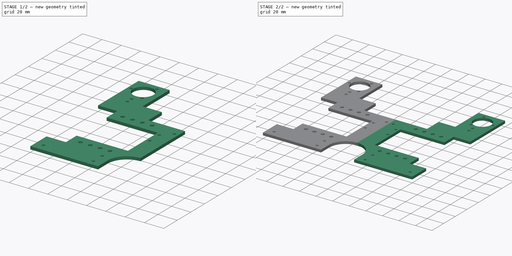
[diagram: build sequence overview — one tinted view per stage of 2, left to right]
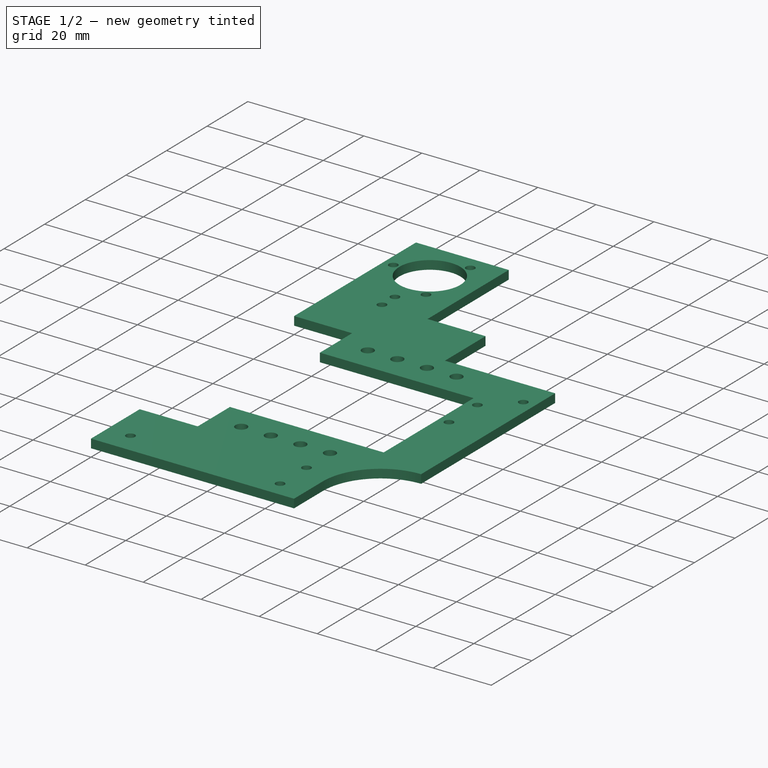
[diagram: stage 1 of 2 — iso view after this stage's code; geometry added in this stage tinted green]
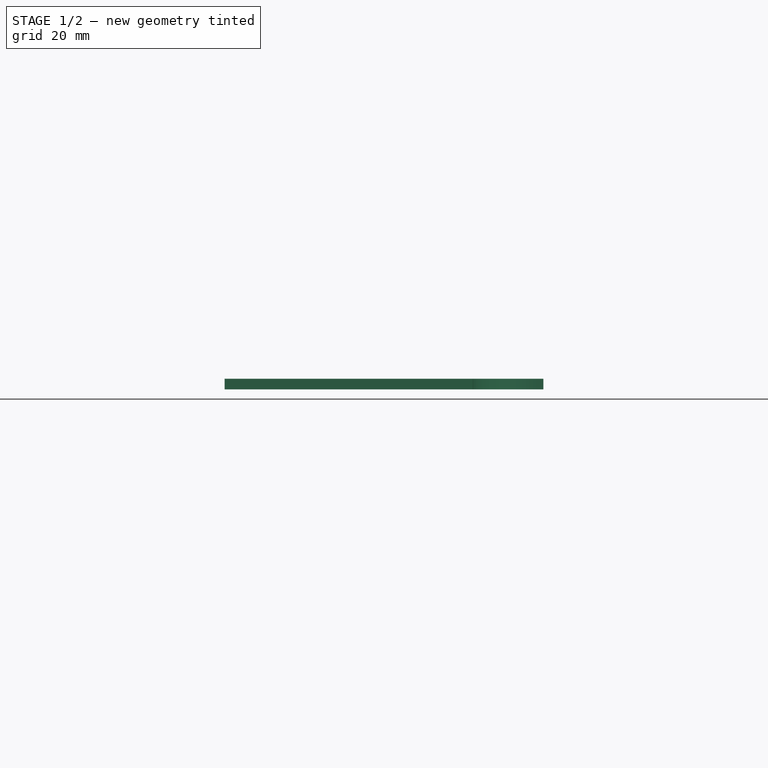
[diagram: stage 1 of 2 — front view after this stage's code; geometry added in this stage tinted green]
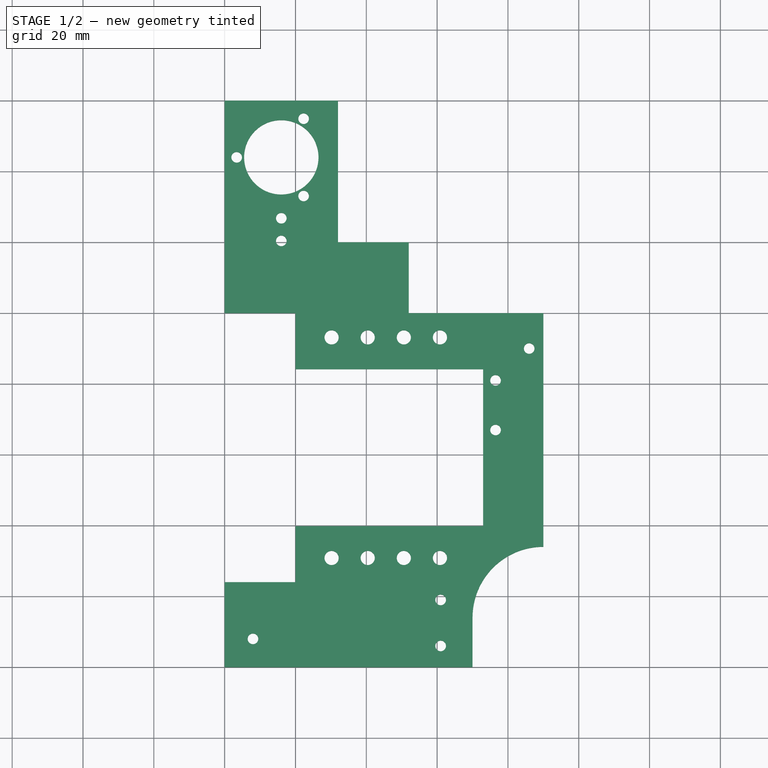
[diagram: stage 1 of 2 — top view after this stage's code; geometry added in this stage tinted green]
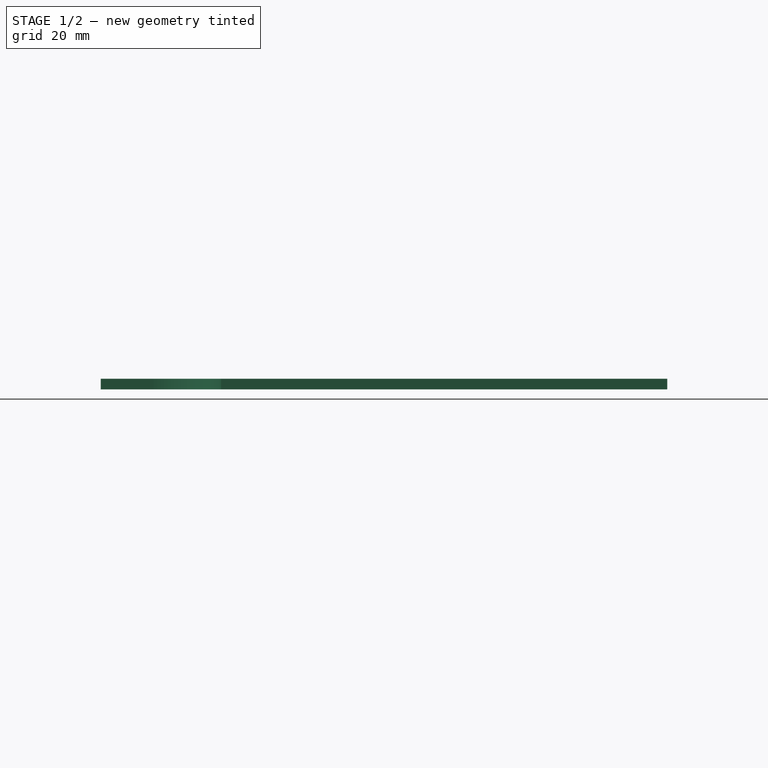
[diagram: stage 1 of 2 — right view after this stage's code; geometry added in this stage tinted green]
FCSTD DOCUMENT  (FreeCAD 0.16R6707 (Git))
Label: base
License: All rights reserved
LicenseURL: http://en.wikipedia.org/wiki/All_rights_reserved
objects: Drawing::FeatureViewPython×40, Drawing::FeatureViewPart×3, Sketcher::SketchObject×1, PartDesign::Pad×1, PartDesign::Mirrored×1, Drawing::FeaturePage×1
note: 4 computed .brp shape members not serialized (recipe doc carries the construction recipe); baked Part::Feature solids carry a one-line shape summary decoded from their .brp

FEATURE [Sketcher::SketchObject] Sketch
  sketch-geometry (63):
    g0: LineSegment StartX=0 StartY=0 StartZ=0 EndX=0 EndY=24 EndZ=0
    g1: LineSegment StartX=0 StartY=24 StartZ=0 EndX=20 EndY=24 EndZ=0
    g2: LineSegment StartX=20 StartY=24 StartZ=0 EndX=20 EndY=39.85 EndZ=0
    g3: LineSegment StartX=20 StartY=39.85 StartZ=0 EndX=73 EndY=39.85 EndZ=0
    g4: LineSegment StartX=73 StartY=39.85 StartZ=0 EndX=73 EndY=84.15 EndZ=0
    g5: LineSegment StartX=73 StartY=84.15 StartZ=0 EndX=20 EndY=84.15 EndZ=0
    g6: LineSegment StartX=20 StartY=84.15 StartZ=0 EndX=20 EndY=100 EndZ=0
    g7: LineSegment StartX=20 StartY=100 StartZ=0 EndX=0 EndY=100 EndZ=0
    g8: LineSegment StartX=0 StartY=100 StartZ=0 EndX=0 EndY=160 EndZ=0
    g9: LineSegment StartX=0 StartY=160 StartZ=0 EndX=32 EndY=160 EndZ=0
    g10: LineSegment StartX=0 StartY=0 StartZ=0 EndX=70 EndY=0 EndZ=0
    g11: LineSegment StartX=70 StartY=0 StartZ=0 EndX=70 EndY=14 EndZ=0
    g12: GeomPoint [constr] X=16 Y=144 Z=0
    g13: Circle CenterX=16 CenterY=144 CenterZ=0 NormalX=0 NormalY=0 NormalZ=1 Radius=10.5
    g14: GeomPoint [constr] X=22.3 Y=154.912 Z=0
    g15: GeomPoint [constr] X=22.3 Y=133.088 Z=0
    g16: GeomPoint [constr] X=3.4 Y=144 Z=0
    g17: Circle CenterX=22.3 CenterY=154.912 CenterZ=0 NormalX=0 NormalY=0 NormalZ=1 Radius=1.5
    g18: Circle CenterX=22.3 CenterY=133.088 CenterZ=0 NormalX=0 NormalY=0 NormalZ=1 Radius=1.5
    g19: Circle CenterX=3.4 CenterY=144 CenterZ=0 NormalX=0 NormalY=0 NormalZ=1 Radius=1.5
    g20: GeomPoint [constr] X=30.2 Y=93.15 Z=0
    g21: GeomPoint [constr] X=40.4 Y=93.15 Z=0
    g22: GeomPoint [constr] X=50.6 Y=93.15 Z=0
    g23: GeomPoint [constr] X=60.8 Y=93.15 Z=0
    g24: GeomPoint [constr] X=30.2 Y=30.85 Z=0
    g25: GeomPoint [constr] X=40.4 Y=30.85 Z=0
    g26: GeomPoint [constr] X=50.6 Y=30.85 Z=0
    g27: GeomPoint [constr] X=60.8 Y=30.85 Z=0
    g28: Circle CenterX=30.2 CenterY=30.85 CenterZ=0 NormalX=0 NormalY=0 NormalZ=1 Radius=2
    g29: Circle CenterX=40.4 CenterY=30.85 CenterZ=0 NormalX=0 NormalY=0 NormalZ=1 Radius=2
    g30: Circle CenterX=50.6 CenterY=30.85 CenterZ=0 NormalX=0 NormalY=0 NormalZ=1 Radius=2
    g31: Circle CenterX=60.8 CenterY=30.85 CenterZ=0 NormalX=0 NormalY=0 NormalZ=1 Radius=2
    g32: Circle CenterX=30.2 CenterY=93.15 CenterZ=0 NormalX=0 NormalY=0 NormalZ=1 Radius=2
    g33: Circle CenterX=40.4 CenterY=93.15 CenterZ=0 NormalX=0 NormalY=0 NormalZ=1 Radius=2
    g34: Circle CenterX=50.6 CenterY=93.15 CenterZ=0 NormalX=0 NormalY=0 NormalZ=1 Radius=2
    g35: Circle CenterX=60.8 CenterY=93.15 CenterZ=0 NormalX=0 NormalY=0 NormalZ=1 Radius=2
    g36: GeomPoint [constr] X=76.5 Y=74 Z=0
    g37: GeomPoint [constr] X=76.5 Y=81 Z=0
    g38: GeomPoint [constr] X=76.5 Y=67 Z=0
    g39: Circle CenterX=76.5 CenterY=81 CenterZ=0 NormalX=0 NormalY=0 NormalZ=1 Radius=1.5
    g40: Circle CenterX=76.5 CenterY=67 CenterZ=0 NormalX=0 NormalY=0 NormalZ=1 Radius=1.5
    g41: GeomPoint [constr] X=61 Y=19 Z=0
    g42: GeomPoint [constr] X=61 Y=6 Z=0
    g43: Circle CenterX=61 CenterY=19 CenterZ=0 NormalX=0 NormalY=0 NormalZ=1 Radius=1.5
    g44: Circle CenterX=61 CenterY=6 CenterZ=0 NormalX=0 NormalY=0 NormalZ=1 Radius=1.5
    g45: GeomPoint [constr] X=8 Y=8 Z=0
    g46: Circle CenterX=8 CenterY=8 CenterZ=0 NormalX=0 NormalY=0 NormalZ=1 Radius=1.5
    g47: LineSegment StartX=52 StartY=100 StartZ=0 EndX=90 EndY=100 EndZ=0
    g48: LineSegment StartX=90 StartY=100 StartZ=0 EndX=90 EndY=34 EndZ=0
    g49: GeomPoint [constr] X=90 Y=14 Z=0
    g50: ArcOfCircle CenterX=90 CenterY=14 CenterZ=0 NormalX=0 NormalY=0 NormalZ=1 Radius=20 StartAngle=1.5708 EndAngle=3.14159
    g51: GeomPoint [constr] X=86 Y=90 Z=0
    g52: Circle CenterX=86 CenterY=90 CenterZ=0 NormalX=0 NormalY=0 NormalZ=1 Radius=1.5
    g53: LineSegment StartX=52 StartY=100 StartZ=0 EndX=52 EndY=120 EndZ=0
    g54: LineSegment StartX=52 StartY=120 StartZ=0 EndX=32 EndY=120 EndZ=0
    g55: LineSegment StartX=32 StartY=160 StartZ=0 EndX=32 EndY=120 EndZ=0
    g56: GeomPoint [constr] X=16 Y=146 Z=0
    g57: GeomPoint [constr] X=16 Y=139.6 Z=0
    g58: GeomPoint [constr] X=16 Y=126.8 Z=0
    g59: GeomPoint [constr] X=16 Y=120.4 Z=0
    g60: GeomPoint [constr] X=16 Y=133.2 Z=0
    g61: Circle CenterX=16 CenterY=126.8 CenterZ=0 NormalX=0 NormalY=0 NormalZ=1 Radius=1.5
    g62: Circle CenterX=16 CenterY=120.4 CenterZ=0 NormalX=0 NormalY=0 NormalZ=1 Radius=1.5
  constraints (134):
    c: Coincident(g0,g-1)
    c: Vertical(g0)
    c: Coincident(g1,g0)
    c: Horizontal(g1)
    c: Coincident(g2,g1)
    c: Vertical(g2)
    c: Coincident(g3,g2)
    c: Horizontal(g3)
    c: Coincident(g4,g3)
    c: Vertical(g4)
    c: Coincident(g5,g4)
    c: Horizontal(g5)
    c: Coincident(g6,g5)
    c: Vertical(g6)
    c: Coincident(g7,g6)
    c: Horizontal(g7)
    c: Distance(g0) = 24
    c: Distance(g1) = 20
    c: Distance(g2) = 15.85
    c: Distance(g3) = 53
    c: Distance(g4) = 44.3
    c: Distance(g5) = 53
    c: Distance(g6) = 15.85
    c: Distance(g7) = 20
    c: Coincident(g8,g7)
    c: Vertical(g8)
    c: Distance(g8) = 60
    c: Coincident(g9,g8)
    c: Horizontal(g9)
    c: Coincident(g10,g-1)
    c: Horizontal(g10)
    c: Distance(g10) = 70
    c: Coincident(g11,g10)
    c: Vertical(g11)
    c: Distance(g11) = 14
    c: DistanceX(g8,g12) = 16
    c: DistanceY(g12,g8) = 16
    c: Coincident(g13,g12)
    c: Radius(g13) = 10.5
    c: Coincident(g17,g14)
    c: Coincident(g18,g15)
    c: Coincident(g19,g16)
    c: Radius(g17) = 1.5
    c: Equal(g17,g18)
    c: Equal(g17,g19)
    c: DistanceY(g5,g20) = 9
    c: DistanceX(g5,g20) = 10.2
    c: DistanceX(g20,g21) = 10.2
    c: DistanceX(g21,g22) = 10.2
    c: DistanceX(g22,g23) = 10.2
    c: DistanceY(g20,g21) = 0
    c: DistanceY(g21,g22) = 0
    c: DistanceY(g23,g22) = 0
    c: DistanceY(g25,g24) = 0
    c: DistanceX(g24,g25) = 10.2
    c: DistanceX(g25,g26) = 10.2
    c: DistanceX(g26,g27) = 10.2
    c: DistanceY(g26,g25) = 0
    c: DistanceY(g27,g26) = 0
    c: DistanceX(g2,g24) = 10.2
    c: DistanceY(g24,g2) = 9
    c: Coincident(g28,g24)
    c: Coincident(g29,g25)
    c: Coincident(g30,g26)
    c: Coincident(g31,g27)
    c: Coincident(g32,g20)
    c: Coincident(g33,g21)
    c: Coincident(g34,g22)
    c: Coincident(g35,g23)
    c: Radius(g32) = 2
    c: Equal(g32,g33)
    c: Equal(g32,g34)
    c: Equal(g32,g35)
    c: Equal(g32, g28-g31) x4
    c: DistanceY(g36) = 74
    c: DistanceX(g36,g48) = 13.5
    c: DistanceY(g38,g36) = 7
    c: DistanceY(g36,g37) = 7
    c: DistanceX(g37,g36) = 0
    c: DistanceX(g36,g38) = 0
    c: Coincident(g39,g37)
    c: Coincident(g40,g38)
    c: Radius(g40) = 1.5
    c: Equal(g40,g39)
    c: DistanceX(g42,g10) = 9
    c: DistanceY(g42) = 6
    c: DistanceY(g42,g41) = 13
    c: DistanceX(g42,g41) = 0
    c: Coincident(g43,g41)
    c: Coincident(g44,g42)
    c: Radius(g43) = 1.5
    c: Equal(g43,g44)
    c: DistanceY(g-1,g45) = 8
    c: DistanceX(g45) = 8
    c: Coincident(g46,g45)
    c: Radius(g46) = 1.5
    c: Horizontal(g47)
    c: Coincident(g48,g47)
    c: DistanceY(g48) = 34
    c: DistanceX(g48) = 90
    c: DistanceY(g11,g49) = 0
    c: DistanceX(g49,g48) = 0
    c: Coincident(g50,g49)
    c: Coincident(g50,g48)
    c: Coincident(g50,g11)
    c: DistanceY(g48,g51) = 56
    c: DistanceX(g51,g47) = 4
    c: Coincident(g52,g51)
    c: Radius(g52) = 1.5
    c: DistanceX(g47) = 90
    c: Distance(g47) = 38
    c: Coincident(g53,g47)
    c: Vertical(g53)
    c: Coincident(g54,g53)
    c: Horizontal(g54)
    c: Distance(g9) = 32
    c: Distance(g54) = 20
    c: Coincident(g55,g9)
    c: Coincident(g55,g54)
    c: Distance(g55) = 40
    c: DistanceY(g56,g8) = 14
    c: DistanceX(g56) = 16
    c: DistanceY(g57,g56) = 6.4
    c: DistanceY(g60,g57) = 6.4
    c: DistanceY(g58,g60) = 6.4
    c: DistanceY(g59,g58) = 6.4
    c: DistanceX(g57,g56) = 0
    c: DistanceX(g60,g57) = 0
    c: DistanceX(g58,g60) = 0
    c: DistanceX(g59,g58) = 0
    c: Coincident(g61,g58)
    c: Coincident(g62,g59)
    c: Radius(g62) = 1.5
    c: Equal(g62,g61)
FEATURE [PartDesign::Pad] Pad
  Length = 3
  Length2 = 100
  Sketch = -> Sketch
  Type = 0
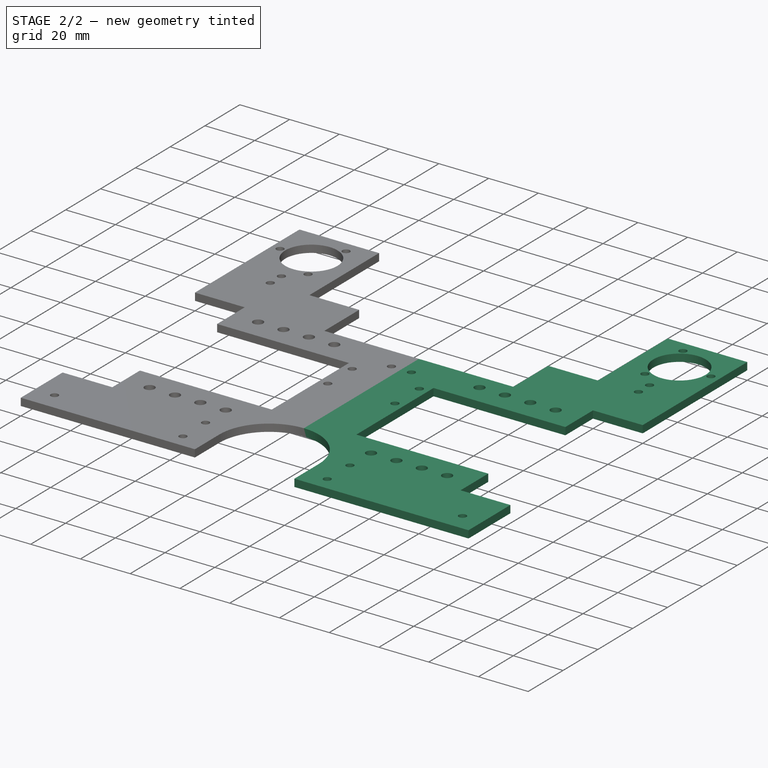
[diagram: stage 2 of 2 — iso view after this stage's code; geometry added in this stage tinted green]
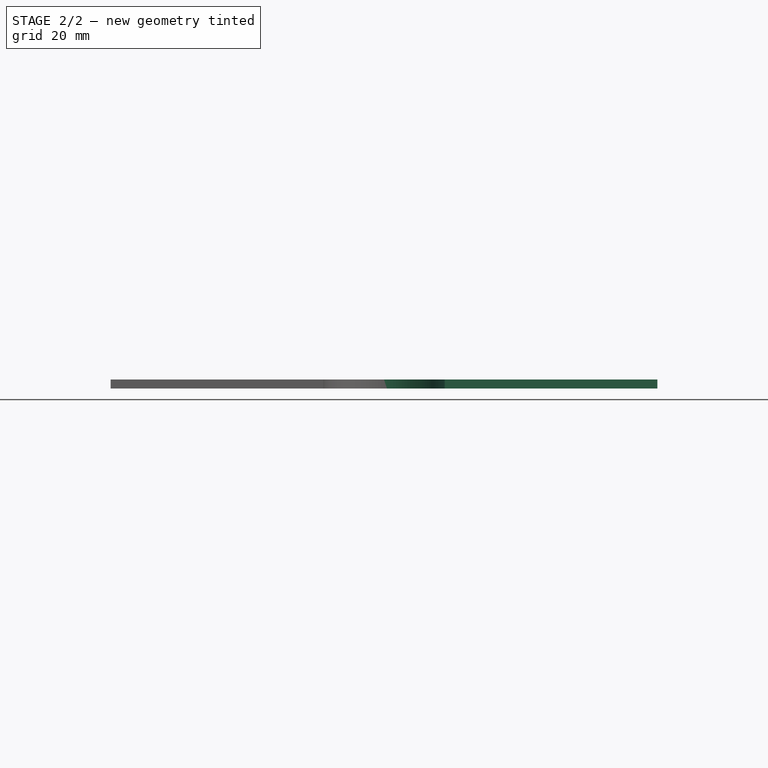
[diagram: stage 2 of 2 — front view after this stage's code; geometry added in this stage tinted green]
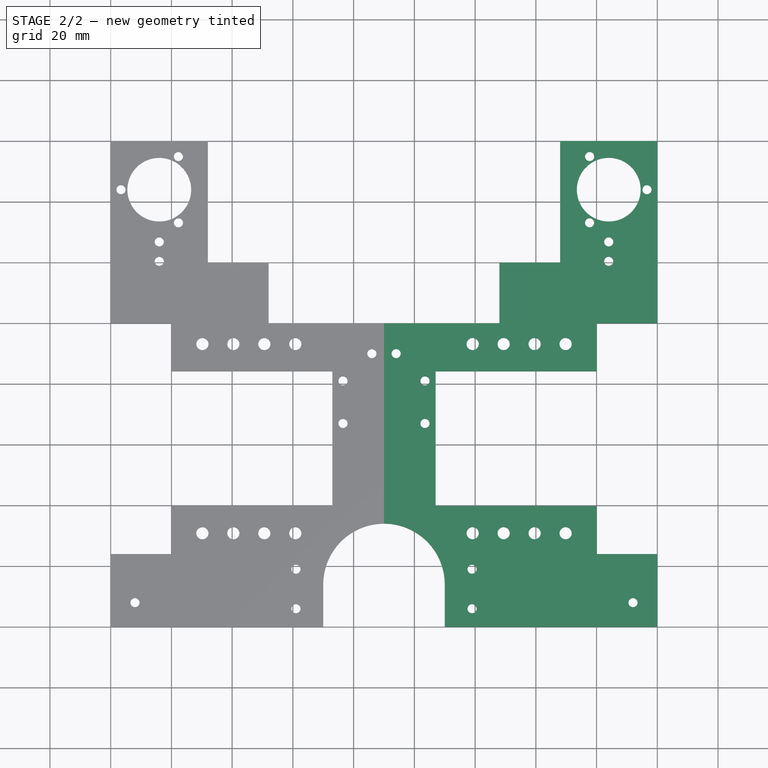
[diagram: stage 2 of 2 — top view after this stage's code; geometry added in this stage tinted green]
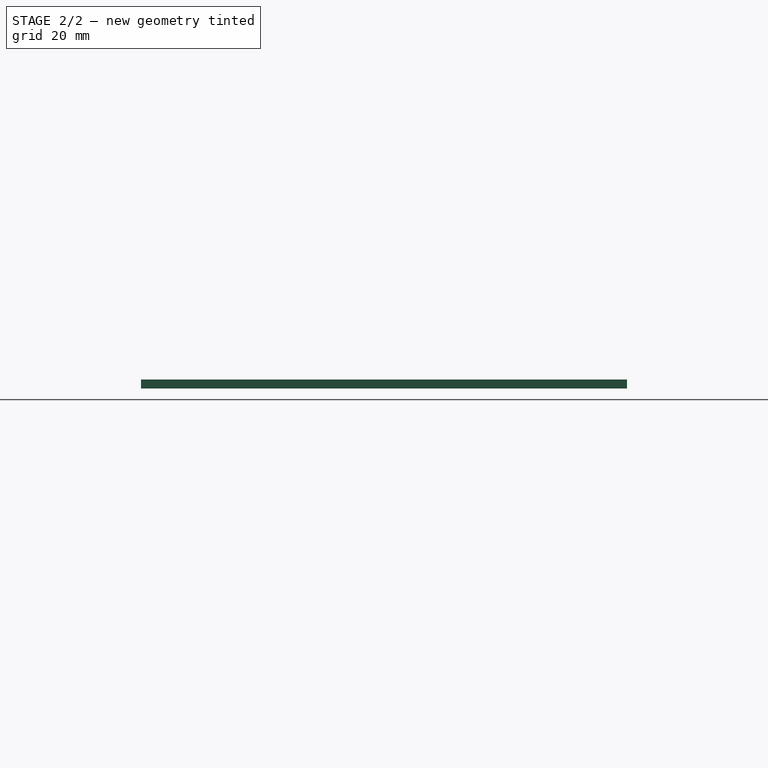
[diagram: stage 2 of 2 — right view after this stage's code; geometry added in this stage tinted green]
FEATURE [PartDesign::Mirrored] Mirrored
  MirrorPlane = -> Pad [Face2]
  Originals = -> [Pad]
FEATURE [Drawing::FeatureViewPart] Ortho  label="Ortho_0_0"
  Direction = (1,0,0)
  HiddenWidth = 0.15
  LineWidth = 0.35
  Rotation = -90
  Scale = 0.75
  ShowHiddenLines = false
  ShowSmoothLines = false
  Source = -> Mirrored
  Tolerance = 0.05
  ViewResult = <g id="Ortho_0_0"\n   transform="rotate(-90,58.3333,200.417) translate(58.3333,200.417) scale(0.75,0.75)"\n  >\n<g   stroke="rgb(0, 0, 0)"\n   stroke-width="0.466667"\n   stroke-linecap="butt"\n   stroke-linejoin="miter"\n   fill="none"\n   transform="scale(1,-1)"\n  >\n<path id= "1" d=" M 0 -160 L 3 -160 " />\n<path id= "2" d=" M 0 -100 L 0 -160 " />\n<path id= "3" d=" M 0 5.65592e-12 L 0 -24 " />\n<path id= "4" d=" M 0 -84.15 L 0 -100 " />\n<path id= "5" d=" M 0 -24 L 0 -39.85 " />\n<path id= "6" d=" M 0 -39.85 L 0 -84.15 " />\n<path id= "7" d=" M 3 -100 L 3 -160 " />\n<path id= "8" d=" M 3 5.65592e-12 L 3 -24 " />\n<path id= "9" d=" M 3 -84.15 L 3 -100 " />\n<path id= "10" d=" M 3 -24 L 3 -39.85 " />\n<path id= "11" d=" M 3 -39.85 L 3 -84.15 " />\n<path id= "12" d=" M 0 -160 L 3 -160 " />\n<path id= "13" d=" M 0 5.65592e-12 L 3 5.65592e-12 " />\n<path id= "14" d=" M 0 -100 L 3 -100 " />\n<path id= "15" d=" M 0 -24 L 3 -24 " />\n<path id= "16" d=" M 0 -24 L 3 -24 " />\n<path id= "17" d=" M 0 -84.15 L 3 -84.15 " />\n<path id= "18" d=" M 0 -39.85 L 3 -39.85 " />\n<path id= "19" d=" M 0 -39.85 L 3 -39.85 " />\n</g>\n</g>
  Visible = true
  X = 58.3333
  Y = 200.417
FEATURE [Drawing::FeatureViewPart] Ortho002  label="Ortho_0_1"
  Direction = (0,0,1)
  HiddenWidth = 0.15
  LineWidth = 0.35
  Rotation = 90
  Scale = 0.75
  ShowHiddenLines = false
  ShowSmoothLines = false
  Source = -> Mirrored
  Tolerance = 0.05
  ViewResult = <blob: 3396 chars omitted>
  Visible = true
  X = 58.3333
  Y = 36.5833
FEATURE [Drawing::FeatureViewPart] Ortho003  label="Ortho_1_1"
  Direction = (0.57735,0.57735,0.57735)
  HiddenWidth = 0.15
  LineWidth = 0.35
  Rotation = 120
  Scale = 0.75
  ShowHiddenLines = false
  ShowSmoothLines = false
  Source = -> Mirrored
  Tolerance = 0.05
  ViewResult = <blob: 12975 chars omitted>
  Visible = true
  X = 299.47
  Y = 52.9502
FEATURE [Drawing::FeatureViewPython] dia001  # drawing view (typed FeaturePython)
  Rotation = 0
  ViewResult = <g>  <circle cx ="166.333300" cy ="48.583300" r="0.250000" stroke="none" fill="rgb(0,0,255)" /> \n<line x1="191.908634" y1="30.091274" x2="159.951683" y2="53.197473" style="stroke:rgb(0,0,255);stroke-width:0.50" />\n<polygon points="172.714917,43.969127 169.697898,44.916543 169.473461,46.312834 170.869751,46.537271" style="fill:rgb(0,0,255);stroke:rgb(0,0,255);stroke-width:0" />\n<polygon points="159.951683,53.197473 162.968702,52.250057 163.193139,50.853766 161.796849,50.629329" style="fill:rgb(0,0,255);stroke:rgb(0,0,255);stroke-width:0" />\n<line x1="191.908634" y1="30.091274" x2="211.560079" y2="30.091274" style="stroke:rgb(0,0,255);stroke-width:0.50" />\n<text x="201.734356" y="28.091274" font-family="inherit" font-size="3.6" fill="rgb(0,0,255)" text-anchor="middle" transform="rotate(0.000000 201.734356,28.091274)" >Ø21</text> </g>
  Visible = true
  X = 0
  Y = 0
  arrowL1 = 3
  arrowL2 = 1
  arrowW = 2
  arrow_scheme = 0
  autoPlaceOffset = 2
  autoPlaceText = true
  centerPointDia = 0.5
  click1_x = 191.909
  click1_y = 30.0913
  click2_x = 211.56
  click2_y = 30.3983
  click3_x = 211.56
  click3_y = 30.3983
  comma_decimal_place = false
  lineColor = rgb(0,0,255)
  strokeWidth = 0.5
  textFormat_circular = Ø%(value)3.3f
  textRenderer_color = rgb(0,0,255)
  textRenderer_family = inherit
  textRenderer_size = 3.6
  unit_custom_scale = 1
  unit_scheme = 0
FEATURE [Drawing::FeatureViewPython] dia002  # drawing view (typed FeaturePython)
  Rotation = 0
  ViewResult = <g>  <circle cx ="174.517300" cy ="53.308300" r="0.250000" stroke="none" fill="rgb(0,0,255)" /> \n<line x1="190.987473" y1="43.908696" x2="173.540222" y2="53.865923" style="stroke:rgb(0,0,255);stroke-width:0.50" />\n<polygon points="175.494378,52.750677 178.595585,52.132196 178.968433,50.768017 177.604255,50.395168" style="fill:rgb(0,0,255);stroke:rgb(0,0,255);stroke-width:0" />\n<polygon points="173.540222,53.865923 170.439015,54.484404 170.066167,55.848583 171.430345,56.221432" style="fill:rgb(0,0,255);stroke:rgb(0,0,255);stroke-width:0" />\n<line x1="190.987473" y1="43.908696" x2="201.120249" y2="43.908696" style="stroke:rgb(0,0,255);stroke-width:0.50" />\n<text x="196.053861" y="41.908696" font-family="inherit" font-size="3.6" fill="rgb(0,0,255)" text-anchor="middle" transform="rotate(0.000000 196.053861,41.908696)" >Ø3</text> </g>
  Visible = true
  X = 0
  Y = 0
  arrowL1 = 3
  arrowL2 = 1
  arrowW = 2
  arrow_scheme = 0
  autoPlaceOffset = 2
  autoPlaceText = true
  centerPointDia = 0.5
  click1_x = 190.987
  click1_y = 43.9087
  click2_x = 201.12
  click2_y = 43.2946
  click3_x = 201.12
  click3_y = 43.2946
  comma_decimal_place = false
  lineColor = rgb(0,0,255)
  strokeWidth = 0.5
  textFormat_circular = Ø%(value)3.3f
  textRenderer_color = rgb(0,0,255)
  textRenderer_family = inherit
  textRenderer_size = 3.6
  unit_custom_scale = 1
  unit_scheme = 0
FEATURE [Drawing::FeatureViewPython] dia003  # drawing view (typed FeaturePython)
  Rotation = 0
  ViewResult = <g>  <circle cx ="128.195800" cy ="59.233300" r="0.250000" stroke="none" fill="rgb(0,0,255)" /> \n<line x1="121.286257" y1="46.058072" x2="128.892462" y2="60.561706" style="stroke:rgb(0,0,255);stroke-width:0.50" />\n<polygon points="127.499138,57.904894 126.991419,54.783641 125.641373,54.362478 125.220211,55.712523" style="fill:rgb(0,0,255);stroke:rgb(0,0,255);stroke-width:0" />\n<polygon points="128.892462,60.561706 129.400181,63.682959 130.750227,64.104122 131.171389,62.754077" style="fill:rgb(0,0,255);stroke:rgb(0,0,255);stroke-width:0" />\n<line x1="121.286257" y1="46.058072" x2="110.539373" y2="46.058072" style="stroke:rgb(0,0,255);stroke-width:0.50" />\n<text x="115.912815" y="44.058072" font-family="inherit" font-size="3.6" fill="rgb(0,0,255)" text-anchor="middle" transform="rotate(0.000000 115.912815,44.058072)" >Ø4</text> </g>
  Visible = true
  X = 0
  Y = 0
  arrowL1 = 3
  arrowL2 = 1
  arrowW = 2
  arrow_scheme = 0
  autoPlaceOffset = 2
  autoPlaceText = true
  centerPointDia = 0.5
  click1_x = 121.286
  click1_y = 46.0581
  click2_x = 110.539
  click2_y = 45.444
  click3_x = 110.539
  click3_y = 45.444
  comma_decimal_place = false
  lineColor = rgb(0,0,255)
  strokeWidth = 0.5
  textFormat_circular = Ø%(value)3.3f
  textRenderer_color = rgb(0,0,255)
  textRenderer_family = inherit
  textRenderer_size = 3.6
  unit_custom_scale = 1
  unit_scheme = 0
FEATURE [Drawing::FeatureViewPython] dia004  # drawing view (typed FeaturePython)
  Rotation = 0
  ViewResult = <g>  <circle cx ="128.195800" cy ="125.983300" r="0.250000" stroke="none" fill="rgb(0,0,255)" /> \n<line x1="138.481271" y1="114.838127" x2="127.178507" y2="127.085623" style="stroke:rgb(0,0,255);stroke-width:0.50" />\n<polygon points="129.213093,124.880977 131.982561,123.354528 131.925874,121.941451 130.512797,121.998137" style="fill:rgb(0,0,255);stroke:rgb(0,0,255);stroke-width:0" />\n<polygon points="127.178507,127.085623 124.409039,128.612072 124.465726,130.025149 125.878803,129.968463" style="fill:rgb(0,0,255);stroke:rgb(0,0,255);stroke-width:0" />\n<line x1="138.481271" y1="114.838127" x2="154.141015" y2="114.838127" style="stroke:rgb(0,0,255);stroke-width:0.50" />\n<text x="146.311143" y="112.838127" font-family="inherit" font-size="3.6" fill="rgb(0,0,255)" text-anchor="middle" transform="rotate(0.000000 146.311143,112.838127)" >Ø4</text> </g>
  Visible = true
  X = 0
  Y = 0
  arrowL1 = 3
  arrowL2 = 1
  arrowW = 2
  arrow_scheme = 0
  autoPlaceOffset = 2
  autoPlaceText = true
  centerPointDia = 0.5
  click1_x = 138.481
  click1_y = 114.838
  click2_x = 154.141
  click2_y = 113.917
  click3_x = 154.141
  click3_y = 113.917
  comma_decimal_place = false
  lineColor = rgb(0,0,255)
  strokeWidth = 0.5
  textFormat_circular = Ø%(value)3.3f
  textRenderer_color = rgb(0,0,255)
  textRenderer_family = inherit
  textRenderer_size = 3.6
  unit_custom_scale = 1
  unit_scheme = 0
FEATURE [Drawing::FeatureViewPython] dia005  # drawing view (typed FeaturePython)
  Rotation = 0
  ViewResult = <g>  <circle cx ="81.470800" cy ="59.233300" r="0.250000" stroke="none" fill="rgb(0,0,255)" /> \n<line x1="87.203283" y1="45.136911" x2="80.905742" y2="60.622800" style="stroke:rgb(0,0,255);stroke-width:0.50" />\n<polygon points="82.035858,57.843800 84.092308,55.441507 83.542681,54.138468 82.239642,54.688096" style="fill:rgb(0,0,255);stroke:rgb(0,0,255);stroke-width:0" />\n<polygon points="80.905742,60.622800 78.849292,63.025093 79.398919,64.328132 80.701958,63.778504" style="fill:rgb(0,0,255);stroke:rgb(0,0,255);stroke-width:0" />\n<line x1="87.203283" y1="45.136911" x2="97.643113" y2="45.136911" style="stroke:rgb(0,0,255);stroke-width:0.50" />\n<text x="92.423198" y="43.136911" font-family="inherit" font-size="3.6" fill="rgb(0,0,255)" text-anchor="middle" transform="rotate(0.000000 92.423198,43.136911)" >Ø4</text> </g>
  Visible = true
  X = 0
  Y = 0
  arrowL1 = 3
  arrowL2 = 1
  arrowW = 2
  arrow_scheme = 0
  autoPlaceOffset = 2
  autoPlaceText = true
  centerPointDia = 0.5
  click1_x = 87.2033
  click1_y = 45.1369
  click2_x = 97.6431
  click2_y = 44.5228
  click3_x = 97.6431
  click3_y = 44.5228
  comma_decimal_place = false
  lineColor = rgb(0,0,255)
  strokeWidth = 0.5
  textFormat_circular = Ø%(value)3.3f
  textRenderer_color = rgb(0,0,255)
  textRenderer_family = inherit
  textRenderer_size = 3.6
  unit_custom_scale = 1
  unit_scheme = 0
FEATURE [Drawing::FeatureViewPython] dia006  # drawing view (typed FeaturePython)
  Rotation = 0
  ViewResult = <g>  <circle cx ="81.470800" cy ="125.983300" r="0.250000" stroke="none" fill="rgb(0,0,255)" /> \n<line x1="91.502037" y1="119.443934" x2="80.214227" y2="126.802460" style="stroke:rgb(0,0,255);stroke-width:0.50" />\n<polygon points="82.727373,125.164140 85.786627,124.363534 86.078235,122.979712 84.694413,122.688103" style="fill:rgb(0,0,255);stroke:rgb(0,0,255);stroke-width:0" />\n<polygon points="80.214227,126.802460 77.154973,127.603066 76.863365,128.986888 78.247187,129.278497" style="fill:rgb(0,0,255);stroke:rgb(0,0,255);stroke-width:0" />\n<line x1="91.502037" y1="119.443934" x2="102.555974" y2="119.443934" style="stroke:rgb(0,0,255);stroke-width:0.50" />\n<text x="97.029006" y="117.443934" font-family="inherit" font-size="3.6" fill="rgb(0,0,255)" text-anchor="middle" transform="rotate(0.000000 97.029006,117.443934)" >Ø4</text> </g>
  Visible = true
  X = 0
  Y = 0
  arrowL1 = 3
  arrowL2 = 1
  arrowW = 2
  arrow_scheme = 0
  autoPlaceOffset = 2
  autoPlaceText = true
  centerPointDia = 0.5
  click1_x = 91.502
  click1_y = 119.444
  click2_x = 102.556
  click2_y = 122.514
  click3_x = 102.556
  click3_y = 122.514
  comma_decimal_place = false
  lineColor = rgb(0,0,255)
  strokeWidth = 0.5
  textFormat_circular = Ø%(value)3.3f
  textRenderer_color = rgb(0,0,255)
  textRenderer_family = inherit
  textRenderer_size = 3.6
  unit_custom_scale = 1
  unit_scheme = 0
FEATURE [Drawing::FeatureViewPython] rad001  # drawing view (typed FeaturePython)
  Rotation = 0
  ViewResult = <g>  <circle cx ="68.833300" cy ="104.083300" r="0.250000" stroke="none" fill="rgb(0,0,255)" /> \n<line x1="84.746853" y1="88.124445" x2="68.833300" y2="104.083300" style="stroke:rgb(0,0,255);stroke-width:0.50" />\n<polygon points="79.424815,93.461633 76.598401,94.879866 76.600411,96.294078 78.014623,96.292068" style="fill:rgb(0,0,255);stroke:rgb(0,0,255);stroke-width:0" />\n<line x1="84.746853" y1="88.124445" x2="107.468835" y2="88.124445" style="stroke:rgb(0,0,255);stroke-width:0.50" />\n<text x="96.107844" y="86.124445" font-family="inherit" font-size="3.6" fill="rgb(0,0,255)" text-anchor="middle" transform="rotate(0.000000 96.107844,86.124445)" >R20</text> </g>
  Visible = true
  X = 0
  Y = 0
  arrowL1 = 3
  arrowL2 = 1
  arrowW = 2
  arrow_scheme = 0
  autoPlaceOffset = 2
  autoPlaceText = true
  centerPointDia = 0.5
  click1_x = 84.7469
  click1_y = 88.1244
  click2_x = 107.469
  click2_y = 84.1327
  click3_x = 107.469
  click3_y = 84.1327
  comma_decimal_place = false
  lineColor = rgb(0,0,255)
  strokeWidth = 0.5
  textFormat_radial = R%(value)3.3f
  textRenderer_color = rgb(0,0,255)
  textRenderer_family = inherit
  textRenderer_size = 3.6
  unit_custom_scale = 1
  unit_scheme = 0
FEATURE [Drawing::FeatureViewPython] dim001  # drawing view (typed FeaturePython)
  Rotation = 0
  ViewResult = <g> \n  <line x1="56.333300" y1="36.583300" x2="42.294588" y2="36.583300" style="stroke:rgb(0,0,255);stroke-width:0.50" />\n<line x1="56.333300" y1="89.083300" x2="42.294588" y2="89.083300" style="stroke:rgb(0,0,255);stroke-width:0.50" />\n<line x1="43.294588" y1="36.583300" x2="43.294588" y2="89.083300" style="stroke:rgb(0,0,255);stroke-width:0.50" /> \n  <polygon points="43.294588,89.083300 44.294588,86.083300 43.294588,85.083300 42.294588,86.083300" style="fill:rgb(0,0,255);stroke:rgb(0,0,255);stroke-width:0" /><polygon points="43.294588,36.583300 42.294588,39.583300 43.294588,40.583300 44.294588,39.583300" style="fill:rgb(0,0,255);stroke:rgb(0,0,255);stroke-width:0" /> \n  <text x="41.294588" y="62.833300" font-family="inherit" font-size="3.6" fill="rgb(0,0,255)" text-anchor="middle" transform="rotate(-90.000000 41.294588,62.833300)" >70</text> </g>
  Visible = true
  X = 0
  Y = 0
  arrowL1 = 3
  arrowL2 = 1
  arrowW = 2
  arrow_scheme = 0
  autoPlaceOffset = 2
  autoPlaceText = true
  click1_x = 43.2946
  click1_y = 64.1742
  click2_x = 43.2946
  click2_y = 64.1742
  comma_decimal_place = false
  dimension_line_overshoot = 1
  gap_datum_points = 2
  halfDimension_linear = false
  lineColor = rgb(0,0,255)
  strokeWidth = 0.5
  textFormat_linear = %(value)3.3f
  textRenderer_color = rgb(0,0,255)
  textRenderer_family = inherit
  textRenderer_size = 3.6
  unit_custom_scale = 1
  unit_scheme = 0
FEATURE [Drawing::FeatureViewPython] dim002  # drawing view (typed FeaturePython)
  Rotation = 0
  ViewResult = <g> \n  <line x1="58.333300" y1="34.583300" x2="58.333300" y2="23.564305" style="stroke:rgb(0,0,255);stroke-width:0.50" />\n<line x1="76.333300" y1="34.583300" x2="76.333300" y2="23.564305" style="stroke:rgb(0,0,255);stroke-width:0.50" />\n<line x1="58.333300" y1="24.564305" x2="76.333300" y2="24.564305" style="stroke:rgb(0,0,255);stroke-width:0.50" /> \n  <polygon points="76.333300,24.564305 73.333300,23.564305 72.333300,24.564305 73.333300,25.564305" style="fill:rgb(0,0,255);stroke:rgb(0,0,255);stroke-width:0" /><polygon points="58.333300,24.564305 61.333300,25.564305 62.333300,24.564305 61.333300,23.564305" style="fill:rgb(0,0,255);stroke:rgb(0,0,255);stroke-width:0" /> \n  <text x="67.333300" y="22.564305" font-family="inherit" font-size="3.6" fill="rgb(0,0,255)" text-anchor="middle" transform="rotate(0.000000 67.333300,22.564305)" >24</text> </g>
  Visible = true
  X = 0
  Y = 0
  arrowL1 = 3
  arrowL2 = 1
  arrowW = 2
  arrow_scheme = 0
  autoPlaceOffset = 2
  autoPlaceText = true
  click1_x = 71.5435
  click1_y = 24.5643
  click2_x = 71.5435
  click2_y = 24.5643
  comma_decimal_place = false
  dimension_line_overshoot = 1
  gap_datum_points = 2
  halfDimension_linear = false
  lineColor = rgb(0,0,255)
  strokeWidth = 0.5
  textFormat_linear = %(value)3.3f
  textRenderer_color = rgb(0,0,255)
  textRenderer_family = inherit
  textRenderer_size = 3.6
  unit_custom_scale = 1
  unit_scheme = 0
FEATURE [Drawing::FeatureViewPython] dim003  # drawing view (typed FeaturePython)
  Rotation = 0
  ViewResult = <g> \n  <line x1="76.333300" y1="49.583300" x2="76.333300" y2="28.170112" style="stroke:rgb(0,0,255);stroke-width:0.50" />\n<line x1="88.220800" y1="49.583300" x2="88.220800" y2="28.170112" style="stroke:rgb(0,0,255);stroke-width:0.50" />\n<line x1="76.333300" y1="29.170112" x2="88.220800" y2="29.170112" style="stroke:rgb(0,0,255);stroke-width:0.50" /> \n  <polygon points="88.220800,29.170112 85.220800,28.170112 84.220800,29.170112 85.220800,30.170112" style="fill:rgb(0,0,255);stroke:rgb(0,0,255);stroke-width:0" /><polygon points="76.333300,29.170112 79.333300,30.170112 80.333300,29.170112 79.333300,28.170112" style="fill:rgb(0,0,255);stroke:rgb(0,0,255);stroke-width:0" /> \n  <text x="82.277050" y="27.170112" font-family="inherit" font-size="3.6" fill="rgb(0,0,255)" text-anchor="middle" transform="rotate(0.000000 82.277050,27.170112)" >15.85</text> </g>
  Visible = true
  X = 0
  Y = 0
  arrowL1 = 3
  arrowL2 = 1
  arrowW = 2
  arrow_scheme = 0
  autoPlaceOffset = 2
  autoPlaceText = true
  click1_x = 89.9668
  click1_y = 29.1701
  click2_x = 89.9668
  click2_y = 29.1701
  comma_decimal_place = false
  dimension_line_overshoot = 1
  gap_datum_points = 2
  halfDimension_linear = false
  lineColor = rgb(0,0,255)
  strokeWidth = 0.5
  textFormat_linear = %(value)3.3f
  textRenderer_color = rgb(0,0,255)
  textRenderer_family = inherit
  textRenderer_size = 3.6
  unit_custom_scale = 1
  unit_scheme = 0
FEATURE [Drawing::FeatureViewPython] dim004  # drawing view (typed FeaturePython)
  Rotation = 0
  ViewResult = <g> \n  <line x1="90.220800" y1="51.583300" x2="104.784189" y2="51.583300" style="stroke:rgb(0,0,255);stroke-width:0.50" />\n<line x1="90.220800" y1="91.333300" x2="104.784189" y2="91.333300" style="stroke:rgb(0,0,255);stroke-width:0.50" />\n<line x1="103.784189" y1="51.583300" x2="103.784189" y2="91.333300" style="stroke:rgb(0,0,255);stroke-width:0.50" /> \n  <polygon points="103.784189,91.333300 104.784189,88.333300 103.784189,87.333300 102.784189,88.333300" style="fill:rgb(0,0,255);stroke:rgb(0,0,255);stroke-width:0" /><polygon points="103.784189,51.583300 102.784189,54.583300 103.784189,55.583300 104.784189,54.583300" style="fill:rgb(0,0,255);stroke:rgb(0,0,255);stroke-width:0" /> \n  <text x="101.784189" y="71.458300" font-family="inherit" font-size="3.6" fill="rgb(0,0,255)" text-anchor="middle" transform="rotate(-90.000000 101.784189,71.458300)" >53</text> </g>
  Visible = true
  X = 0
  Y = 0
  arrowL1 = 3
  arrowL2 = 1
  arrowW = 2
  arrow_scheme = 0
  autoPlaceOffset = 2
  autoPlaceText = true
  click1_x = 103.784
  click1_y = 70.9294
  click2_x = 103.784
  click2_y = 70.9294
  comma_decimal_place = false
  dimension_line_overshoot = 1
  gap_datum_points = 2
  halfDimension_linear = false
  lineColor = rgb(0,0,255)
  strokeWidth = 0.5
  textFormat_linear = %(value)3.3f
  textRenderer_color = rgb(0,0,255)
  textRenderer_family = inherit
  textRenderer_size = 3.6
  unit_custom_scale = 1
  unit_scheme = 0
FEATURE [Drawing::FeatureViewPython] dim005  # drawing view (typed FeaturePython)
  Rotation = 0
  ViewResult = <g> \n  <line x1="88.220800" y1="89.333300" x2="88.220800" y2="77.298723" style="stroke:rgb(0,0,255);stroke-width:0.50" />\n<line x1="121.445800" y1="89.333300" x2="121.445800" y2="77.298723" style="stroke:rgb(0,0,255);stroke-width:0.50" />\n<line x1="88.220800" y1="78.298723" x2="121.445800" y2="78.298723" style="stroke:rgb(0,0,255);stroke-width:0.50" /> \n  <polygon points="121.445800,78.298723 118.445800,77.298723 117.445800,78.298723 118.445800,79.298723" style="fill:rgb(0,0,255);stroke:rgb(0,0,255);stroke-width:0" /><polygon points="88.220800,78.298723 91.220800,79.298723 92.220800,78.298723 91.220800,77.298723" style="fill:rgb(0,0,255);stroke:rgb(0,0,255);stroke-width:0" /> \n  <text x="104.833300" y="76.298723" font-family="inherit" font-size="3.6" fill="rgb(0,0,255)" text-anchor="middle" transform="rotate(0.000000 104.833300,76.298723)" >44.3</text> </g>
  Visible = true
  X = 0
  Y = 0
  arrowL1 = 3
  arrowL2 = 1
  arrowW = 2
  arrow_scheme = 0
  autoPlaceOffset = 2
  autoPlaceText = true
  click1_x = 112.382
  click1_y = 78.2987
  click2_x = 112.382
  click2_y = 78.2987
  comma_decimal_place = false
  dimension_line_overshoot = 1
  gap_datum_points = 2
  halfDimension_linear = false
  lineColor = rgb(0,0,255)
  strokeWidth = 0.5
  textFormat_linear = %(value)3.3f
  textRenderer_color = rgb(0,0,255)
  textRenderer_family = inherit
  textRenderer_size = 3.6
  unit_custom_scale = 1
  unit_scheme = 0
FEATURE [Drawing::FeatureViewPython] dim006  # drawing view (typed FeaturePython)
  Rotation = 0
  ViewResult = <g> \n  <line x1="121.445800" y1="49.583300" x2="121.445800" y2="28.784220" style="stroke:rgb(0,0,255);stroke-width:0.50" />\n<line x1="133.333300" y1="49.583300" x2="133.333300" y2="28.784220" style="stroke:rgb(0,0,255);stroke-width:0.50" />\n<line x1="121.445800" y1="29.784220" x2="133.333300" y2="29.784220" style="stroke:rgb(0,0,255);stroke-width:0.50" /> \n  <polygon points="133.333300,29.784220 130.333300,28.784220 129.333300,29.784220 130.333300,30.784220" style="fill:rgb(0,0,255);stroke:rgb(0,0,255);stroke-width:0" /><polygon points="121.445800,29.784220 124.445800,30.784220 125.445800,29.784220 124.445800,28.784220" style="fill:rgb(0,0,255);stroke:rgb(0,0,255);stroke-width:0" /> \n  <text x="127.389550" y="27.784220" font-family="inherit" font-size="3.6" fill="rgb(0,0,255)" text-anchor="middle" transform="rotate(0.000000 127.389550,27.784220)" >15.85</text> </g>
  Visible = true
  X = 0
  Y = 0
  arrowL1 = 3
  arrowL2 = 1
  arrowW = 2
  arrow_scheme = 0
  autoPlaceOffset = 2
  autoPlaceText = true
  click1_x = 130.191
  click1_y = 29.7842
  click2_x = 130.191
  click2_y = 29.7842
  comma_decimal_place = false
  dimension_line_overshoot = 1
  gap_datum_points = 2
  halfDimension_linear = false
  lineColor = rgb(0,0,255)
  strokeWidth = 0.5
  textFormat_linear = %(value)3.3f
  textRenderer_color = rgb(0,0,255)
  textRenderer_family = inherit
  textRenderer_size = 3.6
  unit_custom_scale = 1
  unit_scheme = 0
FEATURE [Drawing::FeatureViewPython] dim007  # drawing view (typed FeaturePython)
  Rotation = 0
  ViewResult = <g> \n  <line x1="133.333300" y1="34.583300" x2="133.333300" y2="21.107875" style="stroke:rgb(0,0,255);stroke-width:0.50" />\n<line x1="178.333300" y1="34.583300" x2="178.333300" y2="21.107875" style="stroke:rgb(0,0,255);stroke-width:0.50" />\n<line x1="133.333300" y1="22.107875" x2="178.333300" y2="22.107875" style="stroke:rgb(0,0,255);stroke-width:0.50" /> \n  <polygon points="178.333300,22.107875 175.333300,21.107875 174.333300,22.107875 175.333300,23.107875" style="fill:rgb(0,0,255);stroke:rgb(0,0,255);stroke-width:0" /><polygon points="133.333300,22.107875 136.333300,23.107875 137.333300,22.107875 136.333300,21.107875" style="fill:rgb(0,0,255);stroke:rgb(0,0,255);stroke-width:0" /> \n  <text x="155.833300" y="20.107875" font-family="inherit" font-size="3.6" fill="rgb(0,0,255)" text-anchor="middle" transform="rotate(0.000000 155.833300,20.107875)" >60</text> </g>
  Visible = true
  X = 0
  Y = 0
  arrowL1 = 3
  arrowL2 = 1
  arrowW = 2
  arrow_scheme = 0
  autoPlaceOffset = 2
  autoPlaceText = true
  click1_x = 151.685
  click1_y = 22.1079
  click2_x = 151.685
  click2_y = 22.1079
  comma_decimal_place = false
  dimension_line_overshoot = 1
  gap_datum_points = 2
  halfDimension_linear = false
  lineColor = rgb(0,0,255)
  strokeWidth = 0.5
  textFormat_linear = %(value)3.3f
  textRenderer_color = rgb(0,0,255)
  textRenderer_family = inherit
  textRenderer_size = 3.6
  unit_custom_scale = 1
  unit_scheme = 0
FEATURE [Drawing::FeatureViewPython] dim008  # drawing view (typed FeaturePython)
  Rotation = 0
  ViewResult = <g> \n  <line x1="180.333300" y1="36.583300" x2="211.024809" y2="36.583300" style="stroke:rgb(0,0,255);stroke-width:0.50" />\n<line x1="180.333300" y1="60.583300" x2="211.024809" y2="60.583300" style="stroke:rgb(0,0,255);stroke-width:0.50" />\n<line x1="210.024809" y1="36.583300" x2="210.024809" y2="60.583300" style="stroke:rgb(0,0,255);stroke-width:0.50" /> \n  <polygon points="210.024809,60.583300 211.024809,57.583300 210.024809,56.583300 209.024809,57.583300" style="fill:rgb(0,0,255);stroke:rgb(0,0,255);stroke-width:0" /><polygon points="210.024809,36.583300 209.024809,39.583300 210.024809,40.583300 211.024809,39.583300" style="fill:rgb(0,0,255);stroke:rgb(0,0,255);stroke-width:0" /> \n  <text x="208.024809" y="48.583300" font-family="inherit" font-size="3.6" fill="rgb(0,0,255)" text-anchor="middle" transform="rotate(-90.000000 208.024809,48.583300)" >32</text> </g>
  Visible = true
  X = 0
  Y = 0
  arrowL1 = 3
  arrowL2 = 1
  arrowW = 2
  arrow_scheme = 0
  autoPlaceOffset = 2
  autoPlaceText = true
  click1_x = 210.025
  click1_y = 54.6556
  click2_x = 210.025
  click2_y = 54.6556
  comma_decimal_place = false
  dimension_line_overshoot = 1
  gap_datum_points = 2
  halfDimension_linear = false
  lineColor = rgb(0,0,255)
  strokeWidth = 0.5
  textFormat_linear = %(value)3.3f
  textRenderer_color = rgb(0,0,255)
  textRenderer_family = inherit
  textRenderer_size = 3.6
  unit_custom_scale = 1
  unit_scheme = 0
FEATURE [Drawing::FeatureViewPython] dim009  # drawing view (typed FeaturePython)
  Rotation = 0
  ViewResult = <g> \n  <line x1="178.333300" y1="62.583300" x2="178.333300" y2="88.510337" style="stroke:rgb(0,0,255);stroke-width:0.50" />\n<line x1="148.333300" y1="62.583300" x2="148.333300" y2="88.510337" style="stroke:rgb(0,0,255);stroke-width:0.50" />\n<line x1="178.333300" y1="87.510337" x2="148.333300" y2="87.510337" style="stroke:rgb(0,0,255);stroke-width:0.50" /> \n  <polygon points="148.333300,87.510337 151.333300,88.510337 152.333300,87.510337 151.333300,86.510337" style="fill:rgb(0,0,255);stroke:rgb(0,0,255);stroke-width:0" /><polygon points="178.333300,87.510337 175.333300,86.510337 174.333300,87.510337 175.333300,88.510337" style="fill:rgb(0,0,255);stroke:rgb(0,0,255);stroke-width:0" /> \n  <text x="163.333300" y="85.510337" font-family="inherit" font-size="3.6" fill="rgb(0,0,255)" text-anchor="middle" transform="rotate(0.000000 163.333300,85.510337)" >40</text> </g>
  Visible = true
  X = 0
  Y = 0
  arrowL1 = 3
  arrowL2 = 1
  arrowW = 2
  arrow_scheme = 0
  autoPlaceOffset = 2
  autoPlaceText = true
  click1_x = 171.643
  click1_y = 87.5103
  click2_x = 171.643
  click2_y = 87.5103
  comma_decimal_place = false
  dimension_line_overshoot = 1
  gap_datum_points = 2
  halfDimension_linear = false
  lineColor = rgb(0,0,255)
  strokeWidth = 0.5
  textFormat_linear = %(value)3.3f
  textRenderer_color = rgb(0,0,255)
  textRenderer_family = inherit
  textRenderer_size = 3.6
  unit_custom_scale = 1
  unit_scheme = 0
FEATURE [Drawing::FeatureViewPython] dim010  # drawing view (typed FeaturePython)
  Rotation = 0
  ViewResult = <g> \n  <line x1="133.333300" y1="77.583300" x2="133.333300" y2="92.502037" style="stroke:rgb(0,0,255);stroke-width:0.50" />\n<line x1="148.333300" y1="77.583300" x2="148.333300" y2="92.502037" style="stroke:rgb(0,0,255);stroke-width:0.50" />\n<line x1="133.333300" y1="91.502037" x2="148.333300" y2="91.502037" style="stroke:rgb(0,0,255);stroke-width:0.50" /> \n  <polygon points="148.333300,91.502037 145.333300,90.502037 144.333300,91.502037 145.333300,92.502037" style="fill:rgb(0,0,255);stroke:rgb(0,0,255);stroke-width:0" /><polygon points="133.333300,91.502037 136.333300,92.502037 137.333300,91.502037 136.333300,90.502037" style="fill:rgb(0,0,255);stroke:rgb(0,0,255);stroke-width:0" /> \n  <text x="140.833300" y="89.502037" font-family="inherit" font-size="3.6" fill="rgb(0,0,255)" text-anchor="middle" transform="rotate(0.000000 140.833300,89.502037)" >20</text> </g>
  Visible = true
  X = 0
  Y = 0
  arrowL1 = 3
  arrowL2 = 1
  arrowW = 2
  arrow_scheme = 0
  autoPlaceOffset = 2
  autoPlaceText = true
  click1_x = 145.236
  click1_y = 91.502
  click2_x = 145.236
  click2_y = 91.502
  comma_decimal_place = false
  dimension_line_overshoot = 1
  gap_datum_points = 2
  halfDimension_linear = false
  lineColor = rgb(0,0,255)
  strokeWidth = 0.5
  textFormat_linear = %(value)3.3f
  textRenderer_color = rgb(0,0,255)
  textRenderer_family = inherit
  textRenderer_size = 3.6
  unit_custom_scale = 1
  unit_scheme = 0
FEATURE [Drawing::FeatureViewPython] dim011  # drawing view (typed FeaturePython)
  Rotation = 0
  ViewResult = <g> \n  <line x1="150.333300" y1="75.583300" x2="159.439769" y2="75.583300" style="stroke:rgb(0,0,255);stroke-width:0.50" />\n<line x1="150.333300" y1="60.583300" x2="159.439769" y2="60.583300" style="stroke:rgb(0,0,255);stroke-width:0.50" />\n<line x1="158.439769" y1="75.583300" x2="158.439769" y2="60.583300" style="stroke:rgb(0,0,255);stroke-width:0.50" /> \n  <polygon points="158.439769,60.583300 157.439769,63.583300 158.439769,64.583300 159.439769,63.583300" style="fill:rgb(0,0,255);stroke:rgb(0,0,255);stroke-width:0" /><polygon points="158.439769,75.583300 159.439769,72.583300 158.439769,71.583300 157.439769,72.583300" style="fill:rgb(0,0,255);stroke:rgb(0,0,255);stroke-width:0" /> \n  <text x="156.439769" y="68.083300" font-family="inherit" font-size="3.6" fill="rgb(0,0,255)" text-anchor="middle" transform="rotate(-90.000000 156.439769,68.083300)" >20</text> </g>
  Visible = true
  X = 0
  Y = 0
  arrowL1 = 3
  arrowL2 = 1
  arrowW = 2
  arrow_scheme = 0
  autoPlaceOffset = 2
  autoPlaceText = true
  click1_x = 158.44
  click1_y = 70.9294
  click2_x = 158.44
  click2_y = 70.9294
  comma_decimal_place = false
  dimension_line_overshoot = 1
  gap_datum_points = 2
  halfDimension_linear = false
  lineColor = rgb(0,0,255)
  strokeWidth = 0.5
  textFormat_linear = %(value)3.3f
  textRenderer_color = rgb(0,0,255)
  textRenderer_family = inherit
  textRenderer_size = 3.6
  unit_custom_scale = 1
  unit_scheme = 0
FEATURE [Drawing::FeatureViewPython] dim012  # drawing view (typed FeaturePython)
  Rotation = 0
  ViewResult = <g> \n  <line x1="135.333300" y1="75.583300" x2="189.838096" y2="75.583300" style="stroke:rgb(0,0,255);stroke-width:0.50" />\n<line x1="135.333300" y1="104.083300" x2="189.838096" y2="104.083300" style="stroke:rgb(0,0,255);stroke-width:0.50" />\n<line x1="188.838096" y1="75.583300" x2="188.838096" y2="104.083300" style="stroke:rgb(0,0,255);stroke-width:0.50" /> \n  <polygon points="188.838096,104.083300 189.838096,101.083300 188.838096,100.083300 187.838096,101.083300" style="fill:rgb(0,0,255);stroke:rgb(0,0,255);stroke-width:0" /><polygon points="188.838096,75.583300 187.838096,78.583300 188.838096,79.583300 189.838096,78.583300" style="fill:rgb(0,0,255);stroke:rgb(0,0,255);stroke-width:0" /> \n  <text x="186.838096" y="89.833300" font-family="inherit" font-size="3.6" fill="rgb(0,0,255)" text-anchor="middle" transform="rotate(-90.000000 186.838096,89.833300)" >38</text> </g>
  Visible = true
  X = 0
  Y = 0
  arrowL1 = 3
  arrowL2 = 1
  arrowW = 2
  arrow_scheme = 0
  autoPlaceOffset = 2
  autoPlaceText = true
  click1_x = 188.838
  click1_y = 100.714
  click2_x = 188.838
  click2_y = 100.714
  comma_decimal_place = false
  dimension_line_overshoot = 1
  gap_datum_points = 2
  halfDimension_linear = false
  lineColor = rgb(0,0,255)
  strokeWidth = 0.5
  textFormat_linear = %(value)3.3f
  textRenderer_color = rgb(0,0,255)
  textRenderer_family = inherit
  textRenderer_size = 3.6
  unit_custom_scale = 1
  unit_scheme = 0
FEATURE [Drawing::FeatureViewPython] dim013  # drawing view (typed FeaturePython)
  Rotation = 0
  ViewResult = <g> \n  <line x1="81.833300" y1="104.083300" x2="33.082973" y2="104.083300" style="stroke:rgb(0,0,255);stroke-width:0.50" />\n<line x1="56.333300" y1="89.083300" x2="33.082973" y2="89.083300" style="stroke:rgb(0,0,255);stroke-width:0.50" />\n<line x1="34.082973" y1="104.083300" x2="34.082973" y2="89.083300" style="stroke:rgb(0,0,255);stroke-width:0.50" /> \n  <polygon points="34.082973,89.083300 33.082973,92.083300 34.082973,93.083300 35.082973,92.083300" style="fill:rgb(0,0,255);stroke:rgb(0,0,255);stroke-width:0" /><polygon points="34.082973,104.083300 35.082973,101.083300 34.082973,100.083300 33.082973,101.083300" style="fill:rgb(0,0,255);stroke:rgb(0,0,255);stroke-width:0" /> \n  <text x="32.082973" y="96.583300" font-family="inherit" font-size="3.6" fill="rgb(0,0,255)" text-anchor="middle" transform="rotate(-90.000000 32.082973,96.583300)" >20</text> </g>
  Visible = true
  X = 0
  Y = 0
  arrowL1 = 3
  arrowL2 = 1
  arrowW = 2
  arrow_scheme = 0
  autoPlaceOffset = 2
  autoPlaceText = true
  click1_x = 34.083
  click1_y = 98.8713
  click2_x = 34.083
  click2_y = 98.8713
  comma_decimal_place = false
  dimension_line_overshoot = 1
  gap_datum_points = 2
  halfDimension_linear = false
  lineColor = rgb(0,0,255)
  strokeWidth = 0.5
  textFormat_linear = %(value)3.3f
  textRenderer_color = rgb(0,0,255)
  textRenderer_family = inherit
  textRenderer_size = 3.6
  unit_custom_scale = 1
  unit_scheme = 0
FEATURE [Drawing::FeatureViewPython] dim014  # drawing view (typed FeaturePython)
  Rotation = 0
  ViewResult = <g> \n  <line x1="66.333300" y1="42.583300" x2="72.807631" y2="42.583300" style="stroke:rgb(0,0,255);stroke-width:0.50" />\n<line x1="60.333300" y1="36.583300" x2="72.807631" y2="36.583300" style="stroke:rgb(0,0,255);stroke-width:0.50" />\n<line x1="71.807631" y1="42.583300" x2="71.807631" y2="36.583300" style="stroke:rgb(0,0,255);stroke-width:0.50" /> \n  <polygon points="71.807631,36.583300 72.807631,33.583300 71.807631,32.583300 70.807631,33.583300" style="fill:rgb(0,0,255);stroke:rgb(0,0,255);stroke-width:0" /><polygon points="71.807631,42.583300 70.807631,45.583300 71.807631,46.583300 72.807631,45.583300" style="fill:rgb(0,0,255);stroke:rgb(0,0,255);stroke-width:0" /> \n  <text x="69.807631" y="39.583300" font-family="inherit" font-size="3.6" fill="rgb(0,0,255)" text-anchor="middle" transform="rotate(-90.000000 69.807631,39.583300)" >8</text> </g>
  Visible = true
  X = 0
  Y = 0
  arrowL1 = 3
  arrowL2 = 1
  arrowW = 2
  arrow_scheme = 0
  autoPlaceOffset = 2
  autoPlaceText = true
  click1_x = 71.8076
  click1_y = 42.301
  click2_x = 71.8076
  click2_y = 42.301
  comma_decimal_place = false
  dimension_line_overshoot = 1
  gap_datum_points = 2
  halfDimension_linear = false
  lineColor = rgb(0,0,255)
  strokeWidth = 0.5
  textFormat_linear = %(value)3.3f
  textRenderer_color = rgb(0,0,255)
  textRenderer_family = inherit
  textRenderer_size = 3.6
  unit_custom_scale = 1
  unit_scheme = 0
FEATURE [Drawing::FeatureViewPython] dim015  # drawing view (typed FeaturePython)
  Rotation = 0
  ViewResult = <g> \n  <line x1="64.333300" y1="44.583300" x2="64.333300" y2="52.594378" style="stroke:rgb(0,0,255);stroke-width:0.50" />\n<line x1="58.333300" y1="38.583300" x2="58.333300" y2="52.594378" style="stroke:rgb(0,0,255);stroke-width:0.50" />\n<line x1="64.333300" y1="51.594378" x2="58.333300" y2="51.594378" style="stroke:rgb(0,0,255);stroke-width:0.50" /> \n  <polygon points="58.333300,51.594378 55.333300,50.594378 54.333300,51.594378 55.333300,52.594378" style="fill:rgb(0,0,255);stroke:rgb(0,0,255);stroke-width:0" /><polygon points="64.333300,51.594378 67.333300,52.594378 68.333300,51.594378 67.333300,50.594378" style="fill:rgb(0,0,255);stroke:rgb(0,0,255);stroke-width:0" /> \n  <text x="61.333300" y="49.594378" font-family="inherit" font-size="3.6" fill="rgb(0,0,255)" text-anchor="middle" transform="rotate(0.000000 61.333300,49.594378)" >8</text> </g>
  Visible = true
  X = 0
  Y = 0
  arrowL1 = 3
  arrowL2 = 1
  arrowW = 2
  arrow_scheme = 0
  autoPlaceOffset = 2
  autoPlaceText = true
  click1_x = 62.9011
  click1_y = 51.5944
  click2_x = 62.9011
  click2_y = 51.5944
  comma_decimal_place = false
  dimension_line_overshoot = 1
  gap_datum_points = 2
  halfDimension_linear = false
  lineColor = rgb(0,0,255)
  strokeWidth = 0.5
  textFormat_linear = %(value)3.3f
  textRenderer_color = rgb(0,0,255)
  textRenderer_family = inherit
  textRenderer_size = 3.6
  unit_custom_scale = 1
  unit_scheme = 0
FEATURE [Drawing::FeatureViewPython] dim017  # drawing view (typed FeaturePython)
  Rotation = 0
  ViewResult = <g> \n  <line x1="60.833300" y1="82.333300" x2="56.040321" y2="82.333300" style="stroke:rgb(0,0,255);stroke-width:0.50" />\n<line x1="56.333300" y1="89.083300" x2="56.040321" y2="89.083300" style="stroke:rgb(0,0,255);stroke-width:0.50" />\n<line x1="57.040321" y1="82.333300" x2="57.040321" y2="89.083300" style="stroke:rgb(0,0,255);stroke-width:0.50" /> \n  <polygon points="57.040321,89.083300 56.040321,92.083300 57.040321,93.083300 58.040321,92.083300" style="fill:rgb(0,0,255);stroke:rgb(0,0,255);stroke-width:0" /><polygon points="57.040321,82.333300 58.040321,79.333300 57.040321,78.333300 56.040321,79.333300" style="fill:rgb(0,0,255);stroke:rgb(0,0,255);stroke-width:0" /> \n  <text x="55.040321" y="85.708300" font-family="inherit" font-size="3.6" fill="rgb(0,0,255)" text-anchor="middle" transform="rotate(-90.000000 55.040321,85.708300)" >9</text> </g>
  Visible = true
  X = 0
  Y = 0
  arrowL1 = 3
  arrowL2 = 1
  arrowW = 2
  arrow_scheme = 0
  autoPlaceOffset = 2
  autoPlaceText = true
  click1_x = 57.0403
  click1_y = 85.0716
  click2_x = 57.0403
  click2_y = 85.0716
  comma_decimal_place = false
  dimension_line_overshoot = 1
  gap_datum_points = 2
  halfDimension_linear = false
  lineColor = rgb(0,0,255)
  strokeWidth = 0.5
  textFormat_linear = %(value)3.3f
  textRenderer_color = rgb(0,0,255)
  textRenderer_family = inherit
  textRenderer_size = 3.6
  unit_custom_scale = 1
  unit_scheme = 0
FEATURE [Drawing::FeatureViewPython] dim016  # drawing view (typed FeaturePython)
  Rotation = 0
  ViewResult = <g> \n  <line x1="62.833300" y1="80.333300" x2="62.833300" y2="74.601060" style="stroke:rgb(0,0,255);stroke-width:0.50" />\n<line x1="58.333300" y1="87.083300" x2="58.333300" y2="74.601060" style="stroke:rgb(0,0,255);stroke-width:0.50" />\n<line x1="62.833300" y1="75.601060" x2="58.333300" y2="75.601060" style="stroke:rgb(0,0,255);stroke-width:0.50" /> \n  <polygon points="58.333300,75.601060 55.333300,74.601060 54.333300,75.601060 55.333300,76.601060" style="fill:rgb(0,0,255);stroke:rgb(0,0,255);stroke-width:0" /><polygon points="62.833300,75.601060 65.833300,76.601060 66.833300,75.601060 65.833300,74.601060" style="fill:rgb(0,0,255);stroke:rgb(0,0,255);stroke-width:0" /> \n  <text x="60.583300" y="73.601060" font-family="inherit" font-size="3.6" fill="rgb(0,0,255)" text-anchor="middle" transform="rotate(0.000000 60.583300,73.601060)" >6</text> </g>
  Visible = true
  X = 0
  Y = 0
  arrowL1 = 3
  arrowL2 = 1
  arrowW = 2
  arrow_scheme = 0
  autoPlaceOffset = 2
  autoPlaceText = true
  click1_x = 59.6811
  click1_y = 75.6011
  click2_x = 59.6811
  click2_y = 75.6011
  comma_decimal_place = false
  dimension_line_overshoot = 1
  gap_datum_points = 2
  halfDimension_linear = false
  lineColor = rgb(0,0,255)
  strokeWidth = 0.5
  textFormat_linear = %(value)3.3f
  textRenderer_color = rgb(0,0,255)
  textRenderer_family = inherit
  textRenderer_size = 3.6
  unit_custom_scale = 1
  unit_scheme = 0
FEATURE [Drawing::FeatureViewPython] dim018  # drawing view (typed FeaturePython)
  Rotation = 0
  ViewResult = <g> \n  <line x1="62.833300" y1="80.333300" x2="62.833300" y2="74.667456" style="stroke:rgb(0,0,255);stroke-width:0.50" />\n<line x1="72.583300" y1="80.333300" x2="72.583300" y2="74.667456" style="stroke:rgb(0,0,255);stroke-width:0.50" />\n<line x1="62.833300" y1="75.667456" x2="72.583300" y2="75.667456" style="stroke:rgb(0,0,255);stroke-width:0.50" /> \n  <polygon points="72.583300,75.667456 75.583300,76.667456 76.583300,75.667456 75.583300,74.667456" style="fill:rgb(0,0,255);stroke:rgb(0,0,255);stroke-width:0" /><polygon points="62.833300,75.667456 59.833300,74.667456 58.833300,75.667456 59.833300,76.667456" style="fill:rgb(0,0,255);stroke:rgb(0,0,255);stroke-width:0" /> \n  <text x="67.708300" y="73.667456" font-family="inherit" font-size="3.6" fill="rgb(0,0,255)" text-anchor="middle" transform="rotate(0.000000 67.708300,73.667456)" >13</text> </g>
  Visible = true
  X = 0
  Y = 0
  arrowL1 = 3
  arrowL2 = 1
  arrowW = 2
  arrow_scheme = 0
  autoPlaceOffset = 2
  autoPlaceText = true
  click1_x = 73.9731
  click1_y = 75.6675
  click2_x = 73.9731
  click2_y = 75.6675
  comma_decimal_place = false
  dimension_line_overshoot = 1
  gap_datum_points = 2
  halfDimension_linear = false
  lineColor = rgb(0,0,255)
  strokeWidth = 0.5
  textFormat_linear = %(value)3.3f
  textRenderer_color = rgb(0,0,255)
  textRenderer_family = inherit
  textRenderer_size = 3.6
  unit_custom_scale = 1
  unit_scheme = 0
FEATURE [Drawing::FeatureViewPython] dim019  # drawing view (typed FeaturePython)
  Rotation = 0
  ViewResult = <g> \n  <line x1="79.470800" y1="59.233300" x2="73.393616" y2="59.233300" style="stroke:rgb(0,0,255);stroke-width:0.50" />\n<line x1="79.470800" y1="66.883300" x2="73.393616" y2="66.883300" style="stroke:rgb(0,0,255);stroke-width:0.50" />\n<line x1="74.393616" y1="59.233300" x2="74.393616" y2="66.883300" style="stroke:rgb(0,0,255);stroke-width:0.50" /> \n  <polygon points="74.393616,66.883300 73.393616,69.883300 74.393616,70.883300 75.393616,69.883300" style="fill:rgb(0,0,255);stroke:rgb(0,0,255);stroke-width:0" /><polygon points="74.393616,59.233300 75.393616,56.233300 74.393616,55.233300 73.393616,56.233300" style="fill:rgb(0,0,255);stroke:rgb(0,0,255);stroke-width:0" /> \n  <text x="72.393616" y="63.058300" font-family="inherit" font-size="3.6" fill="rgb(0,0,255)" text-anchor="middle" transform="rotate(-90.000000 72.393616,63.058300)" >10.2</text> </g>
  Visible = true
  X = 0
  Y = 0
  arrowL1 = 3
  arrowL2 = 1
  arrowW = 2
  arrow_scheme = 0
  autoPlaceOffset = 2
  autoPlaceText = true
  click1_x = 74.3936
  click1_y = 67.6661
  click2_x = 74.3936
  click2_y = 67.6661
  comma_decimal_place = false
  dimension_line_overshoot = 1
  gap_datum_points = 2
  halfDimension_linear = false
  lineColor = rgb(0,0,255)
  strokeWidth = 0.5
  textFormat_linear = %(value)3.3f
  textRenderer_color = rgb(0,0,255)
  textRenderer_family = inherit
  textRenderer_size = 3.6
  unit_custom_scale = 1
  unit_scheme = 0
FEATURE [Drawing::FeatureViewPython] dim020  # drawing view (typed FeaturePython)
  Rotation = 0
  ViewResult = <g> \n  <line x1="121.445800" y1="93.333300" x2="121.445800" y2="100.181811" style="stroke:rgb(0,0,255);stroke-width:0.50" />\n<line x1="119.083300" y1="95.958300" x2="119.083300" y2="100.181811" style="stroke:rgb(0,0,255);stroke-width:0.50" />\n<line x1="121.445800" y1="99.181811" x2="119.083300" y2="99.181811" style="stroke:rgb(0,0,255);stroke-width:0.50" /> \n  <polygon points="119.083300,99.181811 116.083300,98.181811 115.083300,99.181811 116.083300,100.181811" style="fill:rgb(0,0,255);stroke:rgb(0,0,255);stroke-width:0" /><polygon points="121.445800,99.181811 124.445800,100.181811 125.445800,99.181811 124.445800,98.181811" style="fill:rgb(0,0,255);stroke:rgb(0,0,255);stroke-width:0" /> \n  <text x="120.264550" y="97.181811" font-family="inherit" font-size="3.6" fill="rgb(0,0,255)" text-anchor="middle" transform="rotate(0.000000 120.264550,97.181811)" >3.15</text> </g>
  Visible = true
  X = 0
  Y = 0
  arrowL1 = 3
  arrowL2 = 1
  arrowW = 2
  arrow_scheme = 0
  autoPlaceOffset = 2
  autoPlaceText = true
  click1_x = 119.96
  click1_y = 99.1818
  click2_x = 119.96
  click2_y = 99.1818
  comma_decimal_place = false
  dimension_line_overshoot = 1
  gap_datum_points = 2
  halfDimension_linear = false
  lineColor = rgb(0,0,255)
  strokeWidth = 0.5
  textFormat_linear = %(value)3.3f
  textRenderer_color = rgb(0,0,255)
  textRenderer_family = inherit
  textRenderer_size = 3.6
  unit_custom_scale = 1
  unit_scheme = 0
FEATURE [Drawing::FeatureViewPython] dim021  # drawing view (typed FeaturePython)
  Rotation = 0
  ViewResult = <g> \n  <line x1="121.083300" y1="93.958300" x2="130.729808" y2="93.958300" style="stroke:rgb(0,0,255);stroke-width:0.50" />\n<line x1="123.445800" y1="91.333300" x2="130.729808" y2="91.333300" style="stroke:rgb(0,0,255);stroke-width:0.50" />\n<line x1="129.729808" y1="93.958300" x2="129.729808" y2="91.333300" style="stroke:rgb(0,0,255);stroke-width:0.50" /> \n  <polygon points="129.729808,91.333300 130.729808,88.333300 129.729808,87.333300 128.729808,88.333300" style="fill:rgb(0,0,255);stroke:rgb(0,0,255);stroke-width:0" /><polygon points="129.729808,93.958300 128.729808,96.958300 129.729808,97.958300 130.729808,96.958300" style="fill:rgb(0,0,255);stroke:rgb(0,0,255);stroke-width:0" /> \n  <text x="127.729808" y="92.645800" font-family="inherit" font-size="3.6" fill="rgb(0,0,255)" text-anchor="middle" transform="rotate(-90.000000 127.729808,92.645800)" >3.5</text> </g>
  Visible = true
  X = 0
  Y = 0
  arrowL1 = 3
  arrowL2 = 1
  arrowW = 2
  arrow_scheme = 0
  autoPlaceOffset = 2
  autoPlaceText = true
  click1_x = 129.73
  click1_y = 91.7432
  click2_x = 129.73
  click2_y = 91.7432
  comma_decimal_place = false
  dimension_line_overshoot = 1
  gap_datum_points = 2
  halfDimension_linear = false
  lineColor = rgb(0,0,255)
  strokeWidth = 0.5
  textFormat_linear = %(value)3.3f
  textRenderer_color = rgb(0,0,255)
  textRenderer_family = inherit
  textRenderer_size = 3.6
  unit_custom_scale = 1
  unit_scheme = 0
FEATURE [Drawing::FeatureViewPython] dim022  # drawing view (typed FeaturePython)
  Rotation = 0
  ViewResult = <g> \n  <line x1="119.083300" y1="95.958300" x2="119.083300" y2="102.462992" style="stroke:rgb(0,0,255);stroke-width:0.50" />\n<line x1="108.583300" y1="95.958300" x2="108.583300" y2="102.462992" style="stroke:rgb(0,0,255);stroke-width:0.50" />\n<line x1="119.083300" y1="101.462992" x2="108.583300" y2="101.462992" style="stroke:rgb(0,0,255);stroke-width:0.50" /> \n  <polygon points="108.583300,101.462992 111.583300,102.462992 112.583300,101.462992 111.583300,100.462992" style="fill:rgb(0,0,255);stroke:rgb(0,0,255);stroke-width:0" /><polygon points="119.083300,101.462992 116.083300,100.462992 115.083300,101.462992 116.083300,102.462992" style="fill:rgb(0,0,255);stroke:rgb(0,0,255);stroke-width:0" /> \n  <text x="113.833300" y="99.462992" font-family="inherit" font-size="3.6" fill="rgb(0,0,255)" text-anchor="middle" transform="rotate(0.000000 113.833300,99.462992)" >14</text> </g>
  Visible = true
  X = 0
  Y = 0
  arrowL1 = 3
  arrowL2 = 1
  arrowW = 2
  arrow_scheme = 0
  autoPlaceOffset = 2
  autoPlaceText = true
  click1_x = 111.183
  click1_y = 101.463
  click2_x = 111.183
  click2_y = 101.463
  comma_decimal_place = false
  dimension_line_overshoot = 1
  gap_datum_points = 2
  halfDimension_linear = false
  lineColor = rgb(0,0,255)
  strokeWidth = 0.5
  textFormat_linear = %(value)3.3f
  textRenderer_color = rgb(0,0,255)
  textRenderer_family = inherit
  textRenderer_size = 3.6
  unit_custom_scale = 1
  unit_scheme = 0
FEATURE [Drawing::FeatureViewPython] dim023  # drawing view (typed FeaturePython)
  Rotation = 0
  ViewResult = <g> \n  <line x1="81.470800" y1="61.233300" x2="81.470800" y2="64.912573" style="stroke:rgb(0,0,255);stroke-width:0.50" />\n<line x1="88.220800" y1="53.583300" x2="88.220800" y2="64.912573" style="stroke:rgb(0,0,255);stroke-width:0.50" />\n<line x1="81.470800" y1="63.912573" x2="88.220800" y2="63.912573" style="stroke:rgb(0,0,255);stroke-width:0.50" /> \n  <polygon points="88.220800,63.912573 91.220800,64.912573 92.220800,63.912573 91.220800,62.912573" style="fill:rgb(0,0,255);stroke:rgb(0,0,255);stroke-width:0" /><polygon points="81.470800,63.912573 78.470800,62.912573 77.470800,63.912573 78.470800,64.912573" style="fill:rgb(0,0,255);stroke:rgb(0,0,255);stroke-width:0" /> \n  <text x="84.845800" y="61.912573" font-family="inherit" font-size="3.6" fill="rgb(0,0,255)" text-anchor="middle" transform="rotate(0.000000 84.845800,61.912573)" >9</text> </g>
  Visible = true
  X = 0
  Y = 0
  arrowL1 = 3
  arrowL2 = 1
  arrowW = 2
  arrow_scheme = 0
  autoPlaceOffset = 2
  autoPlaceText = true
  click1_x = 86.3904
  click1_y = 63.9126
  click2_x = 86.3904
  click2_y = 63.9126
  comma_decimal_place = false
  dimension_line_overshoot = 1
  gap_datum_points = 2
  halfDimension_linear = false
  lineColor = rgb(0,0,255)
  strokeWidth = 0.5
  textFormat_linear = %(value)3.3f
  textRenderer_color = rgb(0,0,255)
  textRenderer_family = inherit
  textRenderer_size = 3.6
  unit_custom_scale = 1
  unit_scheme = 0
FEATURE [Drawing::FeatureViewPython] dim024  # drawing view (typed FeaturePython)
  Rotation = 0
  ViewResult = <g> \n  <line x1="157.149305" y1="51.576246" x2="152.608586" y2="43.711431" style="stroke:rgb(0,0,255);stroke-width:0.50" />\n<line x1="165.333305" y1="46.851246" x2="160.792586" y2="38.986431" style="stroke:rgb(0,0,255);stroke-width:0.50" />\n<line x1="153.108583" y1="44.577458" x2="161.292583" y2="39.852458" style="stroke:rgb(0,0,255);stroke-width:0.50" /> \n  <polygon points="161.292583,39.852458 164.390661,39.218493 164.756691,37.852469 163.390667,37.486439" style="fill:rgb(0,0,255);stroke:rgb(0,0,255);stroke-width:0" /><polygon points="153.108583,44.577458 150.010505,45.211423 149.644475,46.577447 151.010499,46.943477" style="fill:rgb(0,0,255);stroke:rgb(0,0,255);stroke-width:0" /> \n  <text x="156.200588" y="40.482904" font-family="inherit" font-size="3.6" fill="rgb(0,0,255)" text-anchor="middle" transform="rotate(-29.999818 156.200588,40.482904)" >12.6</text> </g>
  Visible = true
  X = 0
  Y = 0
  arrowL1 = 3
  arrowL2 = 1
  arrowW = 2
  arrow_scheme = 0
  autoPlaceOffset = 2
  autoPlaceText = true
  click1_x = 152.891
  click1_y = 44.7032
  click2_x = 152.891
  click2_y = 44.7032
  comma_decimal_place = false
  dimension_line_overshoot = 1
  gap_datum_points = 2
  halfDimension_linear = false
  lineColor = rgb(0,0,255)
  strokeWidth = 0.5
  textFormat_linear = %(value)3.3f
  textRenderer_color = rgb(0,0,255)
  textRenderer_family = inherit
  textRenderer_size = 3.6
  unit_custom_scale = 1
  unit_scheme = 0
FEATURE [Drawing::FeatureViewPython] dim025  # drawing view (typed FeaturePython)
  Rotation = 0
  ViewResult = <g> \n  <line x1="148.633300" y1="50.583300" x2="148.633300" y2="54.585728" style="stroke:rgb(0,0,255);stroke-width:0.50" />\n<line x1="153.433300" y1="50.583300" x2="153.433300" y2="54.585728" style="stroke:rgb(0,0,255);stroke-width:0.50" />\n<line x1="148.633300" y1="53.585728" x2="153.433300" y2="53.585728" style="stroke:rgb(0,0,255);stroke-width:0.50" /> \n  <polygon points="153.433300,53.585728 156.433300,54.585728 157.433300,53.585728 156.433300,52.585728" style="fill:rgb(0,0,255);stroke:rgb(0,0,255);stroke-width:0" /><polygon points="148.633300,53.585728 145.633300,52.585728 144.633300,53.585728 145.633300,54.585728" style="fill:rgb(0,0,255);stroke:rgb(0,0,255);stroke-width:0" /> \n  <text x="151.033300" y="51.585728" font-family="inherit" font-size="3.6" fill="rgb(0,0,255)" text-anchor="middle" transform="rotate(0.000000 151.033300,51.585728)" >6.4</text> </g>
  Visible = true
  X = 0
  Y = 0
  arrowL1 = 3
  arrowL2 = 1
  arrowW = 2
  arrow_scheme = 0
  autoPlaceOffset = 2
  autoPlaceText = true
  click1_x = 151.666
  click1_y = 53.5857
  click2_x = 151.666
  click2_y = 53.5857
  comma_decimal_place = false
  dimension_line_overshoot = 1
  gap_datum_points = 2
  halfDimension_linear = false
  lineColor = rgb(0,0,255)
  strokeWidth = 0.5
  textFormat_linear = %(value)3.3f
  textRenderer_color = rgb(0,0,255)
  textRenderer_family = inherit
  textRenderer_size = 3.6
  unit_custom_scale = 1
  unit_scheme = 0
FEATURE [Drawing::FeatureViewPython] dim026  # drawing view (typed FeaturePython)
  Rotation = 0
  ViewResult = <g> \n  <line x1="148.633300" y1="46.583300" x2="148.633300" y2="42.025070" style="stroke:rgb(0,0,255);stroke-width:0.50" />\n<line x1="133.333300" y1="38.583300" x2="133.333300" y2="44.025070" style="stroke:rgb(0,0,255);stroke-width:0.50" />\n<line x1="148.633300" y1="43.025070" x2="133.333300" y2="43.025070" style="stroke:rgb(0,0,255);stroke-width:0.50" /> \n  <polygon points="133.333300,43.025070 136.333300,44.025070 137.333300,43.025070 136.333300,42.025070" style="fill:rgb(0,0,255);stroke:rgb(0,0,255);stroke-width:0" /><polygon points="148.633300,43.025070 145.633300,42.025070 144.633300,43.025070 145.633300,44.025070" style="fill:rgb(0,0,255);stroke:rgb(0,0,255);stroke-width:0" /> \n  <text x="140.983300" y="41.025070" font-family="inherit" font-size="3.6" fill="rgb(0,0,255)" text-anchor="middle" transform="rotate(0.000000 140.983300,41.025070)" >20.4</text> </g>
  Visible = true
  X = 0
  Y = 0
  arrowL1 = 3
  arrowL2 = 1
  arrowW = 2
  arrow_scheme = 0
  autoPlaceOffset = 2
  autoPlaceText = true
  click1_x = 140.977
  click1_y = 43.0251
  click2_x = 140.977
  click2_y = 43.0251
  comma_decimal_place = false
  dimension_line_overshoot = 1
  gap_datum_points = 2
  halfDimension_linear = false
  lineColor = rgb(0,0,255)
  strokeWidth = 0.5
  textFormat_linear = %(value)3.3f
  textRenderer_color = rgb(0,0,255)
  textRenderer_family = inherit
  textRenderer_size = 3.6
  unit_custom_scale = 1
  unit_scheme = 0
FEATURE [Drawing::FeatureViewPython] dim027  # drawing view (typed FeaturePython)
  Rotation = 0
  ViewResult = <g> \n  <line x1="146.633300" y1="48.583300" x2="127.242081" y2="48.583300" style="stroke:rgb(0,0,255);stroke-width:0.50" />\n<line x1="131.333300" y1="36.583300" x2="127.242081" y2="36.583300" style="stroke:rgb(0,0,255);stroke-width:0.50" />\n<line x1="128.242081" y1="48.583300" x2="128.242081" y2="36.583300" style="stroke:rgb(0,0,255);stroke-width:0.50" /> \n  <polygon points="128.242081,36.583300 127.242081,39.583300 128.242081,40.583300 129.242081,39.583300" style="fill:rgb(0,0,255);stroke:rgb(0,0,255);stroke-width:0" /><polygon points="128.242081,48.583300 129.242081,45.583300 128.242081,44.583300 127.242081,45.583300" style="fill:rgb(0,0,255);stroke:rgb(0,0,255);stroke-width:0" /> \n  <text x="126.242081" y="42.583300" font-family="inherit" font-size="3.6" fill="rgb(0,0,255)" text-anchor="middle" transform="rotate(-90.000000 126.242081,42.583300)" >16</text> </g>
  Visible = true
  X = 0
  Y = 0
  arrowL1 = 3
  arrowL2 = 1
  arrowW = 2
  arrow_scheme = 0
  autoPlaceOffset = 2
  autoPlaceText = true
  click1_x = 128.242
  click1_y = 42.0134
  click2_x = 128.242
  click2_y = 42.0134
  comma_decimal_place = false
  dimension_line_overshoot = 1
  gap_datum_points = 2
  halfDimension_linear = false
  lineColor = rgb(0,0,255)
  strokeWidth = 0.5
  textFormat_linear = %(value)3.3f
  textRenderer_color = rgb(0,0,255)
  textRenderer_family = inherit
  textRenderer_size = 3.6
  unit_custom_scale = 1
  unit_scheme = 0
FEATURE [Drawing::FeatureViewPython] dim028  # drawing view (typed FeaturePython)
  Rotation = 0
  ViewResult = <g> \n  <line x1="166.333300" y1="46.583300" x2="166.333300" y2="29.528161" style="stroke:rgb(0,0,255);stroke-width:0.50" />\n<line x1="178.333300" y1="34.583300" x2="178.333300" y2="29.528161" style="stroke:rgb(0,0,255);stroke-width:0.50" />\n<line x1="166.333300" y1="30.528161" x2="178.333300" y2="30.528161" style="stroke:rgb(0,0,255);stroke-width:0.50" /> \n  <polygon points="178.333300,30.528161 175.333300,29.528161 174.333300,30.528161 175.333300,31.528161" style="fill:rgb(0,0,255);stroke:rgb(0,0,255);stroke-width:0" /><polygon points="166.333300,30.528161 169.333300,31.528161 170.333300,30.528161 169.333300,29.528161" style="fill:rgb(0,0,255);stroke:rgb(0,0,255);stroke-width:0" /> \n  <text x="172.333300" y="28.528161" font-family="inherit" font-size="3.6" fill="rgb(0,0,255)" text-anchor="middle" transform="rotate(0.000000 172.333300,28.528161)" >16</text> </g>
  Visible = true
  X = 0
  Y = 0
  arrowL1 = 3
  arrowL2 = 1
  arrowW = 2
  arrow_scheme = 0
  autoPlaceOffset = 2
  autoPlaceText = true
  click1_x = 168.946
  click1_y = 30.5282
  click2_x = 168.946
  click2_y = 30.5282
  comma_decimal_place = false
  dimension_line_overshoot = 1
  gap_datum_points = 2
  halfDimension_linear = false
  lineColor = rgb(0,0,255)
  strokeWidth = 0.5
  textFormat_linear = %(value)3.3f
  textRenderer_color = rgb(0,0,255)
  textRenderer_family = inherit
  textRenderer_size = 3.6
  unit_custom_scale = 1
  unit_scheme = 0
FEATURE [Drawing::FeatureViewPython] dim029  # drawing view (typed FeaturePython)
  Rotation = 0
  ViewResult = <g> \n  <line x1="168.333300" y1="48.583300" x2="185.061604" y2="48.583300" style="stroke:rgb(0,0,255);stroke-width:0.50" />\n<line x1="180.333300" y1="36.583300" x2="185.061604" y2="36.583300" style="stroke:rgb(0,0,255);stroke-width:0.50" />\n<line x1="184.061604" y1="48.583300" x2="184.061604" y2="36.583300" style="stroke:rgb(0,0,255);stroke-width:0.50" /> \n  <polygon points="184.061604,36.583300 183.061604,39.583300 184.061604,40.583300 185.061604,39.583300" style="fill:rgb(0,0,255);stroke:rgb(0,0,255);stroke-width:0" /><polygon points="184.061604,48.583300 185.061604,45.583300 184.061604,44.583300 183.061604,45.583300" style="fill:rgb(0,0,255);stroke:rgb(0,0,255);stroke-width:0" /> \n  <text x="182.061604" y="42.583300" font-family="inherit" font-size="3.6" fill="rgb(0,0,255)" text-anchor="middle" transform="rotate(-90.000000 182.061604,42.583300)" >16</text> </g>
  Visible = true
  X = 0
  Y = 0
  arrowL1 = 3
  arrowL2 = 1
  arrowW = 2
  arrow_scheme = 0
  autoPlaceOffset = 2
  autoPlaceText = true
  click1_x = 184.062
  click1_y = 46.2386
  click2_x = 184.062
  click2_y = 46.2386
  comma_decimal_place = false
  dimension_line_overshoot = 1
  gap_datum_points = 2
  halfDimension_linear = false
  lineColor = rgb(0,0,255)
  strokeWidth = 0.5
  textFormat_linear = %(value)3.3f
  textRenderer_color = rgb(0,0,255)
  textRenderer_family = inherit
  textRenderer_size = 3.6
  unit_custom_scale = 1
  unit_scheme = 0
FEATURE [Drawing::FeatureViewPython] dim030  # drawing view (typed FeaturePython)
  Rotation = 0
  ViewResult = <g> \n  <line x1="79.470800" y1="59.233300" x2="73.380578" y2="59.233300" style="stroke:rgb(0,0,255);stroke-width:0.50" />\n<line x1="74.333300" y1="51.583300" x2="73.380578" y2="51.583300" style="stroke:rgb(0,0,255);stroke-width:0.50" />\n<line x1="74.380578" y1="59.233300" x2="74.380578" y2="51.583300" style="stroke:rgb(0,0,255);stroke-width:0.50" /> \n  <polygon points="74.380578,51.583300 75.380578,48.583300 74.380578,47.583300 73.380578,48.583300" style="fill:rgb(0,0,255);stroke:rgb(0,0,255);stroke-width:0" /><polygon points="74.380578,59.233300 73.380578,62.233300 74.380578,63.233300 75.380578,62.233300" style="fill:rgb(0,0,255);stroke:rgb(0,0,255);stroke-width:0" /> \n  <text x="72.380578" y="55.408300" font-family="inherit" font-size="3.6" fill="rgb(0,0,255)" text-anchor="middle" transform="rotate(-90.000000 72.380578,55.408300)" >10.2</text> </g>
  Visible = true
  X = 0
  Y = 0
  arrowL1 = 3
  arrowL2 = 1
  arrowW = 2
  arrow_scheme = 0
  autoPlaceOffset = 2
  autoPlaceText = true
  click1_x = 74.3806
  click1_y = 54.3024
  click2_x = 74.3806
  click2_y = 54.3024
  comma_decimal_place = false
  dimension_line_overshoot = 1
  gap_datum_points = 2
  halfDimension_linear = false
  lineColor = rgb(0,0,255)
  strokeWidth = 0.5
  textFormat_linear = %(value)3.3f
  textRenderer_color = rgb(0,0,255)
  textRenderer_family = inherit
  textRenderer_size = 3.6
  unit_custom_scale = 1
  unit_scheme = 0
FEATURE [Drawing::FeatureViewPython] dim031  # drawing view (typed FeaturePython)
  Rotation = 0
  ViewResult = <g> \n  <line x1="125.833300" y1="103.083300" x2="125.833300" y2="108.860219" style="stroke:rgb(0,0,255);stroke-width:0.50" />\n<line x1="133.333300" y1="106.083300" x2="133.333300" y2="108.860219" style="stroke:rgb(0,0,255);stroke-width:0.50" />\n<line x1="125.833300" y1="107.860219" x2="133.333300" y2="107.860219" style="stroke:rgb(0,0,255);stroke-width:0.50" /> \n  <polygon points="133.333300,107.860219 136.333300,108.860219 137.333300,107.860219 136.333300,106.860219" style="fill:rgb(0,0,255);stroke:rgb(0,0,255);stroke-width:0" /><polygon points="125.833300,107.860219 122.833300,106.860219 121.833300,107.860219 122.833300,108.860219" style="fill:rgb(0,0,255);stroke:rgb(0,0,255);stroke-width:0" /> \n  <text x="129.583300" y="105.860219" font-family="inherit" font-size="3.6" fill="rgb(0,0,255)" text-anchor="middle" transform="rotate(0.000000 129.583300,105.860219)" >10</text> </g>
  Visible = true
  X = 0
  Y = 0
  arrowL1 = 3
  arrowL2 = 1
  arrowW = 2
  arrow_scheme = 0
  autoPlaceOffset = 2
  autoPlaceText = true
  click1_x = 130.722
  click1_y = 107.86
  click2_x = 130.722
  click2_y = 107.86
  comma_decimal_place = false
  dimension_line_overshoot = 1
  gap_datum_points = 2
  halfDimension_linear = false
  lineColor = rgb(0,0,255)
  strokeWidth = 0.5
  textFormat_linear = %(value)3.3f
  textRenderer_color = rgb(0,0,255)
  textRenderer_family = inherit
  textRenderer_size = 3.6
  unit_custom_scale = 1
  unit_scheme = 0
FEATURE [Drawing::FeatureViewPython] dim032  # drawing view (typed FeaturePython)
  Rotation = 0
  ViewResult = <g> \n  <line x1="127.833300" y1="101.083300" x2="141.193489" y2="101.083300" style="stroke:rgb(0,0,255);stroke-width:0.50" />\n<line x1="135.333300" y1="104.083300" x2="141.193489" y2="104.083300" style="stroke:rgb(0,0,255);stroke-width:0.50" />\n<line x1="140.193489" y1="101.083300" x2="140.193489" y2="104.083300" style="stroke:rgb(0,0,255);stroke-width:0.50" /> \n  <polygon points="140.193489,104.083300 139.193489,107.083300 140.193489,108.083300 141.193489,107.083300" style="fill:rgb(0,0,255);stroke:rgb(0,0,255);stroke-width:0" /><polygon points="140.193489,101.083300 141.193489,98.083300 140.193489,97.083300 139.193489,98.083300" style="fill:rgb(0,0,255);stroke:rgb(0,0,255);stroke-width:0" /> \n  <text x="138.193489" y="102.583300" font-family="inherit" font-size="3.6" fill="rgb(0,0,255)" text-anchor="middle" transform="rotate(-90.000000 138.193489,102.583300)" >4</text> </g>
  Visible = true
  X = 0
  Y = 0
  arrowL1 = 3
  arrowL2 = 1
  arrowW = 2
  arrow_scheme = 0
  autoPlaceOffset = 2
  autoPlaceText = true
  click1_x = 140.193
  click1_y = 102.504
  click2_x = 140.193
  click2_y = 102.504
  comma_decimal_place = false
  dimension_line_overshoot = 1
  gap_datum_points = 2
  halfDimension_linear = false
  lineColor = rgb(0,0,255)
  strokeWidth = 0.5
  textFormat_linear = %(value)3.3f
  textRenderer_color = rgb(0,0,255)
  textRenderer_family = inherit
  textRenderer_size = 3.6
  unit_custom_scale = 1
  unit_scheme = 0
FEATURE [Drawing::FeatureViewPython] dim033  # drawing view (typed FeaturePython)
  Rotation = 0
  ViewResult = <g> \n  <line x1="180.333300" y1="200.417000" x2="195.380480" y2="200.417000" style="stroke:rgb(0,0,255);stroke-width:0.50" />\n<line x1="180.333300" y1="198.167000" x2="195.380480" y2="198.167000" style="stroke:rgb(0,0,255);stroke-width:0.50" />\n<line x1="194.380480" y1="200.417000" x2="194.380480" y2="198.167000" style="stroke:rgb(0,0,255);stroke-width:0.50" /> \n  <polygon points="194.380480,198.167000 195.380480,195.167000 194.380480,194.167000 193.380480,195.167000" style="fill:rgb(0,0,255);stroke:rgb(0,0,255);stroke-width:0" /><polygon points="194.380480,200.417000 193.380480,203.417000 194.380480,204.417000 195.380480,203.417000" style="fill:rgb(0,0,255);stroke:rgb(0,0,255);stroke-width:0" /> \n  <text x="192.380480" y="199.292000" font-family="inherit" font-size="3.6" fill="rgb(0,0,255)" text-anchor="middle" transform="rotate(-90.000000 192.380480,199.292000)" >3</text> </g>
  Visible = true
  X = 0
  Y = 0
  arrowL1 = 3
  arrowL2 = 1
  arrowW = 2
  arrow_scheme = 0
  autoPlaceOffset = 2
  autoPlaceText = true
  click1_x = 194.38
  click1_y = 198.665
  click2_x = 194.38
  click2_y = 198.665
  comma_decimal_place = false
  dimension_line_overshoot = 1
  gap_datum_points = 2
  halfDimension_linear = false
  lineColor = rgb(0,0,255)
  strokeWidth = 0.5
  textFormat_linear = %(value)3.3f
  textRenderer_color = rgb(0,0,255)
  textRenderer_family = inherit
  textRenderer_size = 3.6
  unit_custom_scale = 1
  unit_scheme = 0
FEATURE [Drawing::FeaturePage] Page
  EditableTexts = AUTHOR NAME | CREATION DATE | SUPERVISOR NAME | CHECK DATE | SCALE | WEIGHT | NUMBER | SHEET | TITLE | SUBTITLE
  Group = -> [Ortho,Ortho002,Ortho003,dia001,dia002,dia003,dia004,dia005,dia006,rad001,dim001,dim002,dim003,dim004,dim005,dim006,dim007,dim008,dim009,dim010,dim011,dim012,dim013,dim014,dim015,dim017,dim016,dim018,dim019,dim020,dim021,dim022,dim023,dim024,dim025,dim026,dim027,dim028,dim029,dim030,dim031,dim032,dim033]
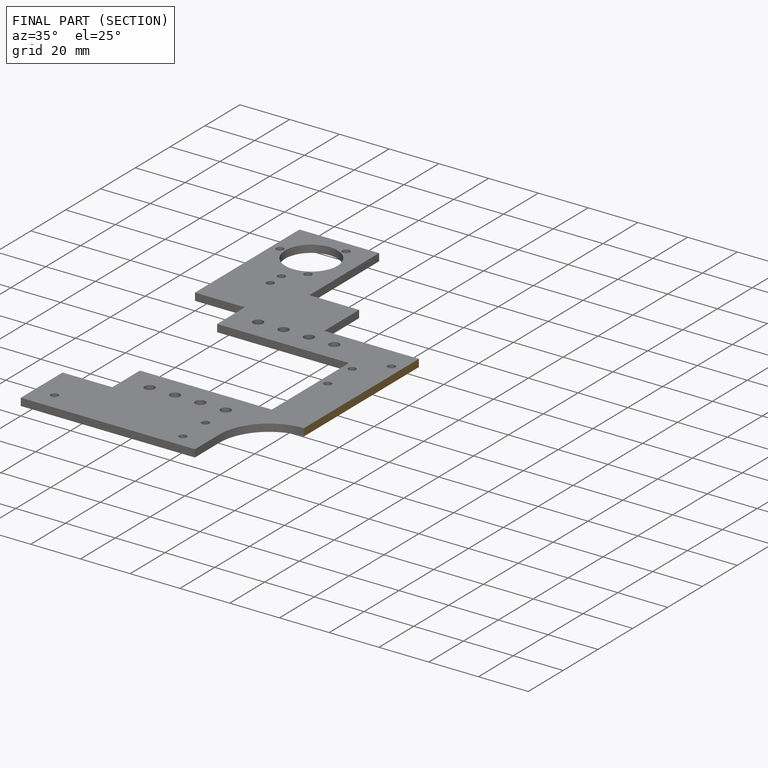
[diagram: finished part — half-section view (interior)]
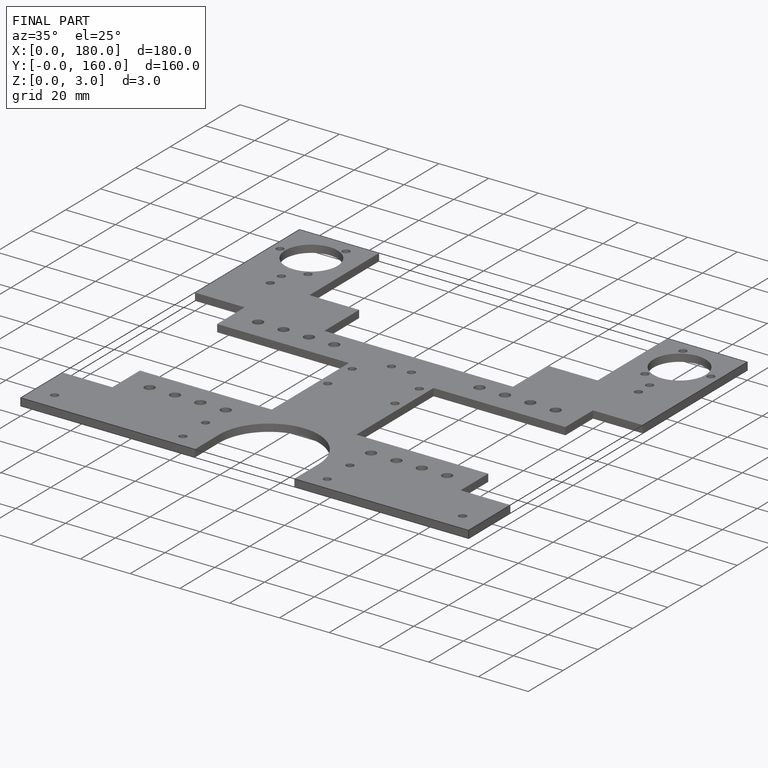
[diagram: finished part — iso view with bounding-box wireframe]
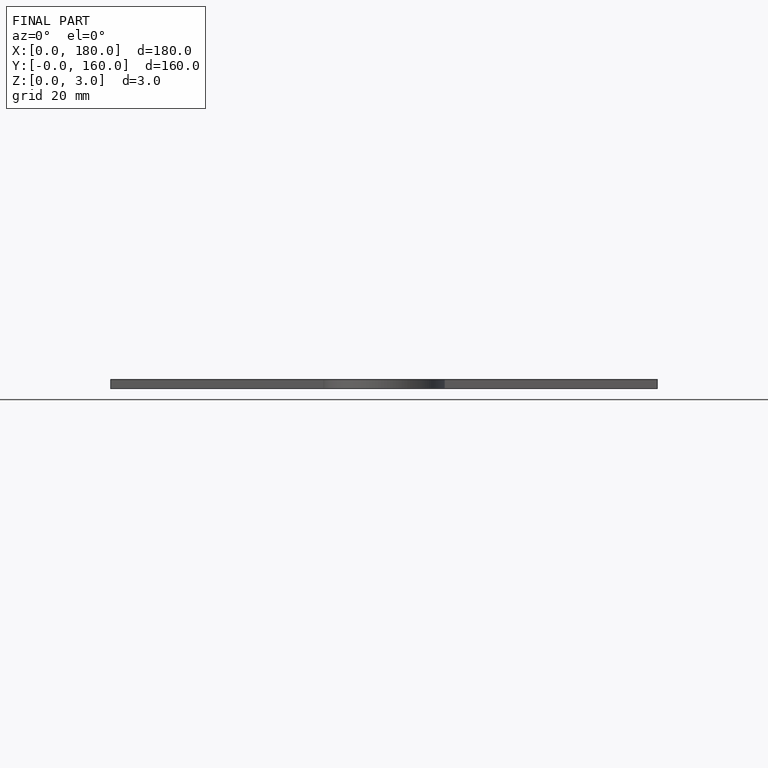
[diagram: finished part — front view with bounding-box wireframe]
